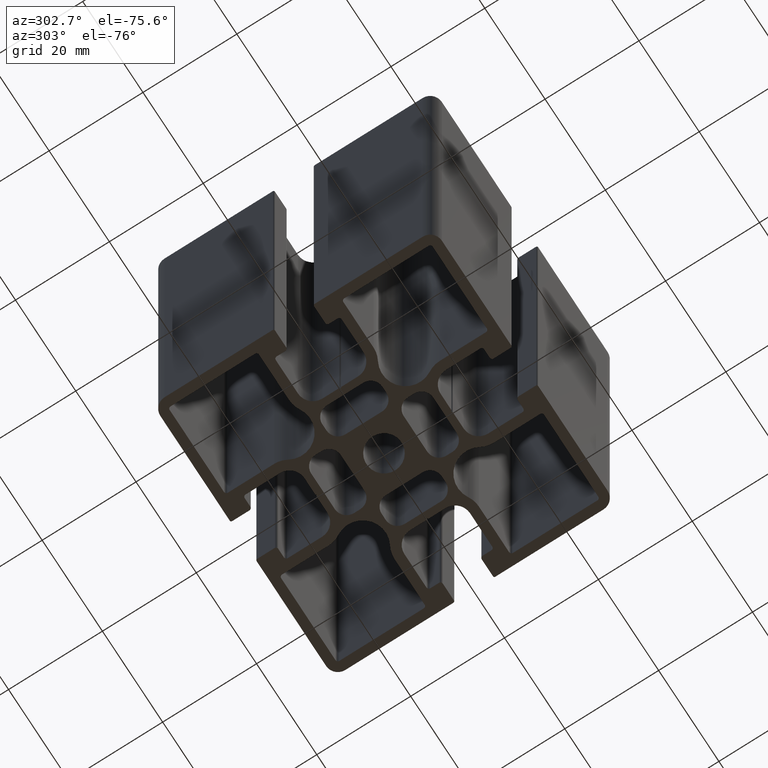
[diagram: clean part render]
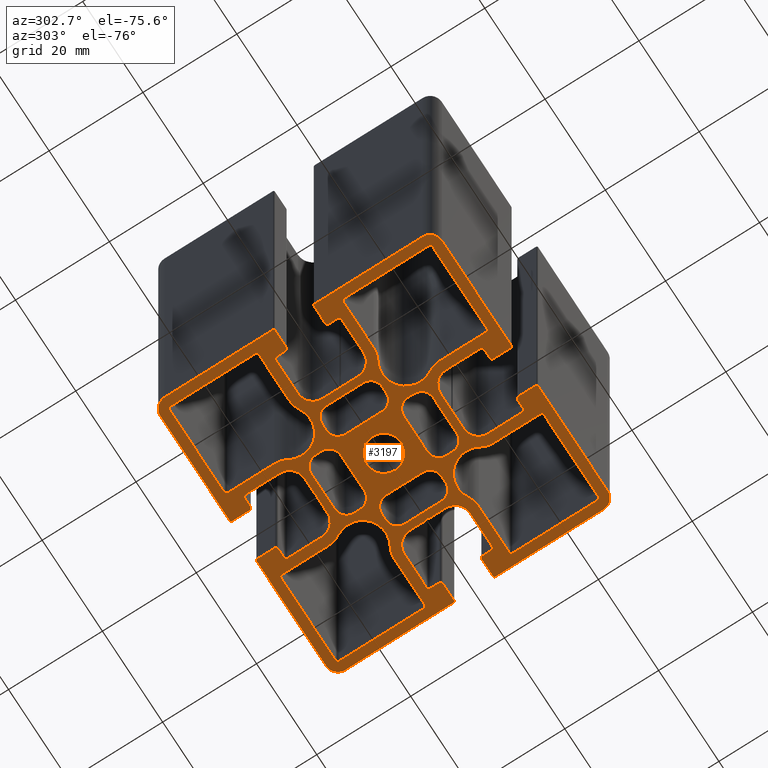
[diagram: same view with one face highlighted and labeled with its STEP entity id]
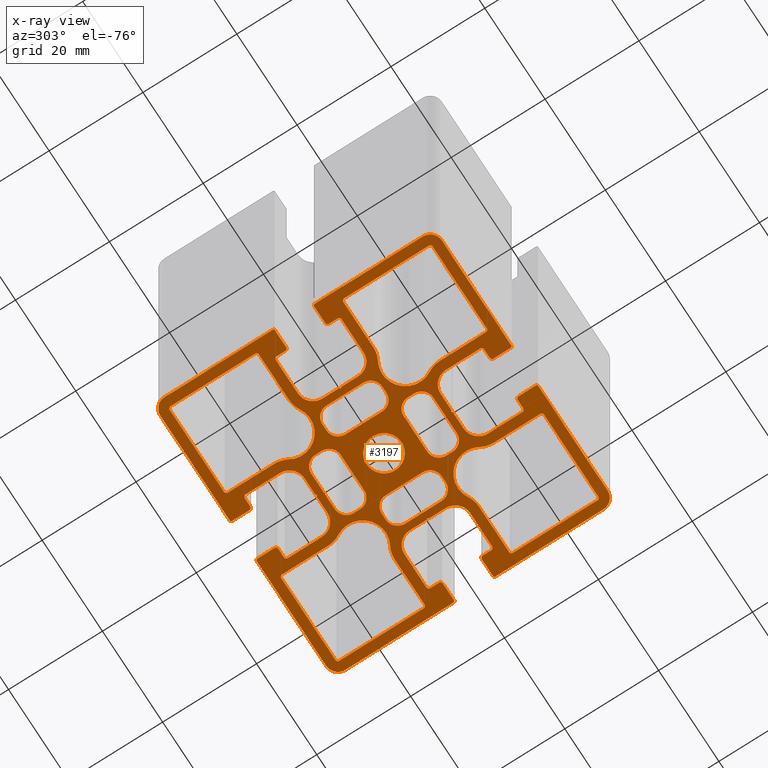
[diagram: x-ray of the same camera — body ghosted, the highlighted face saturated]
A machine part, auxiliary view. The second image highlights one B-rep face of the part: STEP entity #3197.
The next image is the same camera in x-ray: the body ghosted, the highlighted face saturated — about 0% of this face is hidden behind the body in this view.
In plain terms, the highlighted planar face has unit normal (0, 0, 1).
Its self-contained STEP definition (entity closure, byte-faithful):
#16=FACE_BOUND('',#583,.T.);
#17=FACE_BOUND('',#584,.T.);
#18=FACE_BOUND('',#585,.T.);
#19=FACE_BOUND('',#586,.T.);
#20=FACE_BOUND('',#587,.T.);
#21=FACE_BOUND('',#588,.T.);
#22=FACE_BOUND('',#589,.T.);
#23=FACE_BOUND('',#590,.T.);
#24=FACE_BOUND('',#591,.T.);
#34=CIRCLE('',#3203,5.00000000000021);
#36=CIRCLE('',#3206,4.9122486443293);
#38=CIRCLE('',#3209,5.00000000000036);
#40=CIRCLE('',#3213,0.500000000000025);
#42=CIRCLE('',#3217,0.500000000000007);
#44=CIRCLE('',#3221,0.500000000000025);
#46=CIRCLE('',#3224,5.00000000000031);
#48=CIRCLE('',#3228,0.50000000000006);
#50=CIRCLE('',#3232,0.500000000000007);
#52=CIRCLE('',#3236,0.500000000000007);
#54=CIRCLE('',#3240,4.99999999999972);
#56=CIRCLE('',#3243,4.9122486443293);
#58=CIRCLE('',#3247,0.500000000000007);
#60=CIRCLE('',#3251,4.99999999999999);
#62=CIRCLE('',#3254,4.91224864432931);
#64=CIRCLE('',#3257,5.00000000000009);
#66=CIRCLE('',#3261,0.500000000000025);
#68=CIRCLE('',#3265,0.499999999999998);
#70=CIRCLE('',#3268,0.499999999999998);
#72=CIRCLE('',#3272,0.500000000000025);
#74=CIRCLE('',#3276,0.499999999999989);
#76=CIRCLE('',#3280,4.99999999999964);
#78=CIRCLE('',#3283,4.9122486443293);
#80=CIRCLE('',#3286,4.99999999999993);
#82=CIRCLE('',#3290,2.5);
#84=CIRCLE('',#3294,2.5);
#86=CIRCLE('',#3298,2.50000000000002);
#88=CIRCLE('',#3302,2.49999999999998);
#90=CIRCLE('',#3307,2.49999999999998);
#92=CIRCLE('',#3311,2.50000000000002);
#94=CIRCLE('',#3315,2.49999999999998);
#96=CIRCLE('',#3319,2.49999999999996);
#98=CIRCLE('',#3323,2.50000000000001);
#100=CIRCLE('',#3327,2.5);
#102=CIRCLE('',#3331,2.50000000000001);
#104=CIRCLE('',#3335,2.49999999999998);
#106=CIRCLE('',#3338,2.50000000000004);
#108=CIRCLE('',#3342,2.49999999999998);
#110=CIRCLE('',#3346,2.5);
#112=CIRCLE('',#3350,2.49999999999998);
#115=CIRCLE('',#3355,3.735);
#116=CIRCLE('',#3360,3.19999999999998);
#118=CIRCLE('',#3364,0.499999999999989);
#120=CIRCLE('',#3368,0.499999999999989);
#122=CIRCLE('',#3372,0.300000000000011);
#124=CIRCLE('',#3376,2.50000000000001);
#126=CIRCLE('',#3380,0.299999999999994);
#128=CIRCLE('',#3384,0.500000000000016);
#130=CIRCLE('',#3388,0.500000000000025);
#132=CIRCLE('',#3392,3.19999999999999);
#134=CIRCLE('',#3399,3.19999999999998);
#136=CIRCLE('',#3403,0.499999999999989);
#138=CIRCLE('',#3407,0.500000000000007);
#140=CIRCLE('',#3411,0.299999999999976);
#142=CIRCLE('',#3415,2.49999999999996);
#144=CIRCLE('',#3419,0.300000000000038);
#146=CIRCLE('',#3423,0.500000000000078);
#148=CIRCLE('',#3427,0.500000000000052);
#150=CIRCLE('',#3431,3.2);
#152=CIRCLE('',#3438,3.2);
#154=CIRCLE('',#3442,0.500000000000078);
#156=CIRCLE('',#3446,0.50000000000006);
#158=CIRCLE('',#3450,0.300000000000047);
#160=CIRCLE('',#3454,2.49999999999996);
#162=CIRCLE('',#3458,0.299999999999976);
#164=CIRCLE('',#3462,0.500000000000025);
#166=CIRCLE('',#3466,0.500000000000007);
#168=CIRCLE('',#3470,3.2);
#170=CIRCLE('',#3477,3.2);
#172=CIRCLE('',#3481,0.500000000000025);
#174=CIRCLE('',#3485,0.500000000000043);
#176=CIRCLE('',#3489,0.299999999999976);
#178=CIRCLE('',#3493,2.49999999999998);
#180=CIRCLE('',#3497,0.299999999999976);
#182=CIRCLE('',#3501,0.500000000000025);
#184=CIRCLE('',#3505,0.500000000000025);
#186=CIRCLE('',#3509,3.2);
#422=FACE_OUTER_BOUND('',#582,.T.);
#582=EDGE_LOOP('',(#2644,#2645,#2646,#2647,#2648,#2649,#2650,#2651,#2652,
#2653,#2654,#2655,#2656,#2657,#2658,#2659,#2660,#2661,#2662,#2663,#2664,
#2665,#2666,#2667,#2668,#2669,#2670,#2671,#2672,#2673,#2674,#2675,#2676,
#2677,#2678,#2679,#2680,#2681,#2682,#2683,#2684,#2685,#2686,#2687,#2688,
#2689,#2690,#2691,#2692,#2693,#2694,#2695,#2696,#2697,#2698,#2699,#2700,
#2701,#2702,#2703,#2704,#2705,#2706,#2707,#2708,#2709,#2710,#2711,#2712,
#2713,#2714,#2715,#2716,#2717,#2718,#2719,#2720,#2721,#2722,#2723,#2724,
#2725,#2726,#2727));
#583=EDGE_LOOP('',(#2728,#2729,#2730,#2731,#2732,#2733,#2734,#2735,#2736,
#2737));
#584=EDGE_LOOP('',(#2738,#2739,#2740,#2741,#2742,#2743,#2744,#2745,#2746,
#2747));
#585=EDGE_LOOP('',(#2748,#2749,#2750,#2751,#2752,#2753,#2754,#2755,#2756,
#2757));
#586=EDGE_LOOP('',(#2758,#2759,#2760,#2761,#2762,#2763,#2764,#2765,#2766,
#2767));
#587=EDGE_LOOP('',(#2768,#2769,#2770,#2771,#2772,#2773,#2774,#2775));
#588=EDGE_LOOP('',(#2776,#2777,#2778,#2779,#2780,#2781,#2782,#2783));
#589=EDGE_LOOP('',(#2784,#2785,#2786,#2787,#2788,#2789,#2790,#2791));
#590=EDGE_LOOP('',(#2792,#2793,#2794,#2795,#2796,#2797,#2798,#2799));
#591=EDGE_LOOP('',(#2800));
#602=LINE('',#4462,#918);
#609=LINE('',#4488,#925);
#613=LINE('',#4500,#929);
#617=LINE('',#4512,#933);
#622=LINE('',#4530,#938);
#626=LINE('',#4542,#942);
#630=LINE('',#4554,#946);
#634=LINE('',#4566,#950);
#638=LINE('',#4582,#954);
#643=LINE('',#4596,#959);
#649=LINE('',#4620,#965);
#653=LINE('',#4632,#969);
#658=LINE('',#4650,#974);
#662=LINE('',#4662,#978);
#666=LINE('',#4674,#982);
#672=LINE('',#4697,#988);
#676=LINE('',#4710,#992);
#680=LINE('',#4722,#996);
#684=LINE('',#4734,#1000);
#688=LINE('',#4745,#1004);
#690=LINE('',#4750,#1006);
#695=LINE('',#4764,#1011);
#699=LINE('',#4776,#1015);
#703=LINE('',#4788,#1019);
#706=LINE('',#4798,#1022);
#711=LINE('',#4812,#1027);
#715=LINE('',#4824,#1031);
#719=LINE('',#4836,#1035);
#724=LINE('',#4854,#1040);
#728=LINE('',#4866,#1044);
#732=LINE('',#4878,#1048);
#736=LINE('',#4889,#1052);
#738=LINE('',#4899,#1054);
#742=LINE('',#4907,#1058);
#745=LINE('',#4913,#1061);
#749=LINE('',#4925,#1065);
#753=LINE('',#4937,#1069);
#757=LINE('',#4949,#1073);
#761=LINE('',#4961,#1077);
#765=LINE('',#4973,#1081);
#769=LINE('',#4985,#1085);
#773=LINE('',#4997,#1089);
#777=LINE('',#5009,#1093);
#781=LINE('',#5021,#1097);
#784=LINE('',#5027,#1100);
#787=LINE('',#5033,#1103);
#790=LINE('',#5039,#1106);
#794=LINE('',#5051,#1110);
#798=LINE('',#5063,#1114);
#802=LINE('',#5075,#1118);
#806=LINE('',#5087,#1122);
#810=LINE('',#5099,#1126);
#814=LINE('',#5111,#1130);
#818=LINE('',#5123,#1134);
#822=LINE('',#5135,#1138);
#826=LINE('',#5147,#1142);
#829=LINE('',#5153,#1145);
#832=LINE('',#5159,#1148);
#835=LINE('',#5165,#1151);
#839=LINE('',#5177,#1155);
#843=LINE('',#5189,#1159);
#847=LINE('',#5201,#1163);
#851=LINE('',#5213,#1167);
#855=LINE('',#5225,#1171);
#859=LINE('',#5237,#1175);
#863=LINE('',#5249,#1179);
#867=LINE('',#5261,#1183);
#871=LINE('',#5273,#1187);
#874=LINE('',#5279,#1190);
#877=LINE('',#5285,#1193);
#880=LINE('',#5291,#1196);
#884=LINE('',#5303,#1200);
#888=LINE('',#5315,#1204);
#892=LINE('',#5327,#1208);
#896=LINE('',#5339,#1212);
#900=LINE('',#5351,#1216);
#904=LINE('',#5363,#1220);
#908=LINE('',#5375,#1224);
#912=LINE('',#5387,#1228);
#916=LINE('',#5398,#1232);
#918=VECTOR('',#3518,9.86005191961489);
#925=VECTOR('',#3545,10.0097508725516);
#929=VECTOR('',#3557,17.9999999999998);
#933=VECTOR('',#3569,17.9999999999999);
#938=VECTOR('',#3588,9.86005191961478);
#942=VECTOR('',#3600,17.9999999999999);
#946=VECTOR('',#3612,18.0000000000038);
#950=VECTOR('',#3624,10.0097508725516);
#954=VECTOR('',#3642,17.9999999999999);
#959=VECTOR('',#3655,9.86005191961478);
#965=VECTOR('',#3681,10.0097508725516);
#969=VECTOR('',#3693,18.);
#974=VECTOR('',#3712,17.9999999999999);
#978=VECTOR('',#3724,17.9999999999999);
#982=VECTOR('',#3736,10.0097508725516);
#988=VECTOR('',#3762,9.86005191961491);
#992=VECTOR('',#3774,7.79999999999993);
#996=VECTOR('',#3786,1.29999999999995);
#1000=VECTOR('',#3798,7.8);
#1004=VECTOR('',#3810,1.29999999999981);
#1006=VECTOR('',#3814,1.30000000000003);
#1011=VECTOR('',#3827,7.79999999999998);
#1015=VECTOR('',#3839,1.29999999999985);
#1019=VECTOR('',#3851,7.80000000000003);
#1022=VECTOR('',#3862,7.79999999999997);
#1027=VECTOR('',#3875,1.30000000000001);
#1031=VECTOR('',#3887,7.79999999999993);
#1035=VECTOR('',#3899,1.29999999999979);
#1040=VECTOR('',#3918,7.80000000000001);
#1044=VECTOR('',#3930,1.29999999999999);
#1048=VECTOR('',#3942,7.79999999999998);
#1052=VECTOR('',#3954,1.29999999999981);
#1054=VECTOR('',#3964,0.291605758509997);
#1058=VECTOR('',#3970,0.291605758511014);
#1061=VECTOR('',#3975,3.59380359072532);
#1065=VECTOR('',#3987,7.30000000000006);
#1069=VECTOR('',#3999,1.85000000000004);
#1073=VECTOR('',#4011,3.70000000000005);
#1077=VECTOR('',#4023,23.0500000000002);
#1081=VECTOR('',#4035,23.0500000000003);
#1085=VECTOR('',#4047,3.69999999999997);
#1089=VECTOR('',#4059,1.85000000000002);
#1093=VECTOR('',#4071,7.30000000000001);
#1097=VECTOR('',#4083,3.59380359072386);
#1100=VECTOR('',#4088,0.291605758510009);
#1103=VECTOR('',#4093,0.291605758511045);
#1106=VECTOR('',#4098,3.59380359072531);
#1110=VECTOR('',#4110,7.30000000000005);
#1114=VECTOR('',#4122,1.85000000000016);
#1118=VECTOR('',#4134,3.7);
#1122=VECTOR('',#4146,23.05);
#1126=VECTOR('',#4158,23.0499999999999);
#1130=VECTOR('',#4170,3.69999999999991);
#1134=VECTOR('',#4182,1.85000000000002);
#1138=VECTOR('',#4194,7.3);
#1142=VECTOR('',#4206,3.59380359072388);
#1145=VECTOR('',#4211,0.291605758511039);
#1148=VECTOR('',#4216,0.291605758510022);
#1151=VECTOR('',#4221,3.59380359072532);
#1155=VECTOR('',#4233,7.3);
#1159=VECTOR('',#4245,1.85000000000004);
#1163=VECTOR('',#4257,3.70000000000005);
#1167=VECTOR('',#4269,23.0499999999995);
#1171=VECTOR('',#4281,23.0499999999956);
#1175=VECTOR('',#4293,3.69999999999996);
#1179=VECTOR('',#4305,1.85000000000066);
#1183=VECTOR('',#4317,7.3);
#1187=VECTOR('',#4329,3.59380359072417);
#1190=VECTOR('',#4334,0.291605758514217);
#1193=VECTOR('',#4339,0.291605758511052);
#1196=VECTOR('',#4344,3.5938035907253);
#1200=VECTOR('',#4356,7.30000000000004);
#1204=VECTOR('',#4368,1.84999999999999);
#1208=VECTOR('',#4380,3.69999999999992);
#1212=VECTOR('',#4392,23.0499999999999);
#1216=VECTOR('',#4404,23.05);
#1220=VECTOR('',#4416,3.6999999999999);
#1224=VECTOR('',#4428,1.85000000000002);
#1228=VECTOR('',#4440,7.3);
#1232=VECTOR('',#4452,3.59380359072388);
#1234=VERTEX_POINT('',#4460);
#1235=VERTEX_POINT('',#4461);
#1238=VERTEX_POINT('',#4469);
#1240=VERTEX_POINT('',#4475);
#1242=VERTEX_POINT('',#4481);
#1244=VERTEX_POINT('',#4487);
#1246=VERTEX_POINT('',#4493);
#1248=VERTEX_POINT('',#4499);
#1250=VERTEX_POINT('',#4505);
#1252=VERTEX_POINT('',#4511);
#1254=VERTEX_POINT('',#4520);
#1255=VERTEX_POINT('',#4521);
#1258=VERTEX_POINT('',#4529);
#1260=VERTEX_POINT('',#4535);
#1262=VERTEX_POINT('',#4541);
#1264=VERTEX_POINT('',#4547);
#1266=VERTEX_POINT('',#4553);
#1268=VERTEX_POINT('',#4559);
#1270=VERTEX_POINT('',#4565);
#1272=VERTEX_POINT('',#4571);
#1274=VERTEX_POINT('',#4580);
#1275=VERTEX_POINT('',#4581);
#1278=VERTEX_POINT('',#4589);
#1280=VERTEX_POINT('',#4595);
#1282=VERTEX_POINT('',#4601);
#1284=VERTEX_POINT('',#4607);
#1286=VERTEX_POINT('',#4613);
#1288=VERTEX_POINT('',#4619);
#1290=VERTEX_POINT('',#4625);
#1292=VERTEX_POINT('',#4631);
#1294=VERTEX_POINT('',#4640);
#1295=VERTEX_POINT('',#4641);
#1298=VERTEX_POINT('',#4649);
#1300=VERTEX_POINT('',#4655);
#1302=VERTEX_POINT('',#4661);
#1304=VERTEX_POINT('',#4667);
#1306=VERTEX_POINT('',#4673);
#1308=VERTEX_POINT('',#4679);
#1310=VERTEX_POINT('',#4685);
#1312=VERTEX_POINT('',#4691);
#1314=VERTEX_POINT('',#4700);
#1315=VERTEX_POINT('',#4701);
#1318=VERTEX_POINT('',#4709);
#1320=VERTEX_POINT('',#4715);
#1322=VERTEX_POINT('',#4721);
#1324=VERTEX_POINT('',#4727);
#1326=VERTEX_POINT('',#4733);
#1328=VERTEX_POINT('',#4739);
#1330=VERTEX_POINT('',#4748);
#1331=VERTEX_POINT('',#4749);
#1334=VERTEX_POINT('',#4757);
#1336=VERTEX_POINT('',#4763);
#1338=VERTEX_POINT('',#4769);
#1340=VERTEX_POINT('',#4775);
#1342=VERTEX_POINT('',#4781);
#1344=VERTEX_POINT('',#4787);
#1346=VERTEX_POINT('',#4796);
#1347=VERTEX_POINT('',#4797);
#1350=VERTEX_POINT('',#4805);
#1352=VERTEX_POINT('',#4811);
#1354=VERTEX_POINT('',#4817);
#1356=VERTEX_POINT('',#4823);
#1358=VERTEX_POINT('',#4829);
#1360=VERTEX_POINT('',#4835);
#1362=VERTEX_POINT('',#4844);
#1363=VERTEX_POINT('',#4845);
#1366=VERTEX_POINT('',#4853);
#1368=VERTEX_POINT('',#4859);
#1370=VERTEX_POINT('',#4865);
#1372=VERTEX_POINT('',#4871);
#1374=VERTEX_POINT('',#4877);
#1376=VERTEX_POINT('',#4883);
#1379=VERTEX_POINT('',#4894);
#1380=VERTEX_POINT('',#4897);
#1381=VERTEX_POINT('',#4898);
#1384=VERTEX_POINT('',#4906);
#1386=VERTEX_POINT('',#4912);
#1388=VERTEX_POINT('',#4918);
#1390=VERTEX_POINT('',#4924);
#1392=VERTEX_POINT('',#4930);
#1394=VERTEX_POINT('',#4936);
#1396=VERTEX_POINT('',#4942);
#1398=VERTEX_POINT('',#4948);
#1400=VERTEX_POINT('',#4954);
#1402=VERTEX_POINT('',#4960);
#1404=VERTEX_POINT('',#4966);
#1406=VERTEX_POINT('',#4972);
#1408=VERTEX_POINT('',#4978);
#1410=VERTEX_POINT('',#4984);
#1412=VERTEX_POINT('',#4990);
#1414=VERTEX_POINT('',#4996);
#1416=VERTEX_POINT('',#5002);
#1418=VERTEX_POINT('',#5008);
#1420=VERTEX_POINT('',#5014);
#1422=VERTEX_POINT('',#5020);
#1424=VERTEX_POINT('',#5026);
#1426=VERTEX_POINT('',#5032);
#1428=VERTEX_POINT('',#5038);
#1430=VERTEX_POINT('',#5044);
#1432=VERTEX_POINT('',#5050);
#1434=VERTEX_POINT('',#5056);
#1436=VERTEX_POINT('',#5062);
#1438=VERTEX_POINT('',#5068);
#1440=VERTEX_POINT('',#5074);
#1442=VERTEX_POINT('',#5080);
#1444=VERTEX_POINT('',#5086);
#1446=VERTEX_POINT('',#5092);
#1448=VERTEX_POINT('',#5098);
#1450=VERTEX_POINT('',#5104);
#1452=VERTEX_POINT('',#5110);
#1454=VERTEX_POINT('',#5116);
#1456=VERTEX_POINT('',#5122);
#1458=VERTEX_POINT('',#5128);
#1460=VERTEX_POINT('',#5134);
#1462=VERTEX_POINT('',#5140);
#1464=VERTEX_POINT('',#5146);
#1466=VERTEX_POINT('',#5152);
#1468=VERTEX_POINT('',#5158);
#1470=VERTEX_POINT('',#5164);
#1472=VERTEX_POINT('',#5170);
#1474=VERTEX_POINT('',#5176);
#1476=VERTEX_POINT('',#5182);
#1478=VERTEX_POINT('',#5188);
#1480=VERTEX_POINT('',#5194);
#1482=VERTEX_POINT('',#5200);
#1484=VERTEX_POINT('',#5206);
#1486=VERTEX_POINT('',#5212);
#1488=VERTEX_POINT('',#5218);
#1490=VERTEX_POINT('',#5224);
#1492=VERTEX_POINT('',#5230);
#1494=VERTEX_POINT('',#5236);
#1496=VERTEX_POINT('',#5242);
#1498=VERTEX_POINT('',#5248);
#1500=VERTEX_POINT('',#5254);
#1502=VERTEX_POINT('',#5260);
#1504=VERTEX_POINT('',#5266);
#1506=VERTEX_POINT('',#5272);
#1508=VERTEX_POINT('',#5278);
#1510=VERTEX_POINT('',#5284);
#1512=VERTEX_POINT('',#5290);
#1514=VERTEX_POINT('',#5296);
#1516=VERTEX_POINT('',#5302);
#1518=VERTEX_POINT('',#5308);
#1520=VERTEX_POINT('',#5314);
#1522=VERTEX_POINT('',#5320);
#1524=VERTEX_POINT('',#5326);
#1526=VERTEX_POINT('',#5332);
#1528=VERTEX_POINT('',#5338);
#1530=VERTEX_POINT('',#5344);
#1532=VERTEX_POINT('',#5350);
#1534=VERTEX_POINT('',#5356);
#1536=VERTEX_POINT('',#5362);
#1538=VERTEX_POINT('',#5368);
#1540=VERTEX_POINT('',#5374);
#1542=VERTEX_POINT('',#5380);
#1544=VERTEX_POINT('',#5386);
#1546=VERTEX_POINT('',#5392);
#1548=EDGE_CURVE('',#1234,#1235,#602,.T.);
#1552=EDGE_CURVE('',#1238,#1234,#34,.T.);
#1555=EDGE_CURVE('',#1240,#1238,#36,.T.);
#1558=EDGE_CURVE('',#1242,#1240,#38,.T.);
#1561=EDGE_CURVE('',#1244,#1242,#609,.T.);
#1564=EDGE_CURVE('',#1246,#1244,#40,.T.);
#1567=EDGE_CURVE('',#1248,#1246,#613,.T.);
#1570=EDGE_CURVE('',#1250,#1248,#42,.T.);
#1573=EDGE_CURVE('',#1252,#1250,#617,.T.);
#1576=EDGE_CURVE('',#1235,#1252,#44,.T.);
#1578=EDGE_CURVE('',#1254,#1255,#46,.T.);
#1582=EDGE_CURVE('',#1258,#1254,#622,.T.);
#1585=EDGE_CURVE('',#1260,#1258,#48,.T.);
#1588=EDGE_CURVE('',#1262,#1260,#626,.T.);
#1591=EDGE_CURVE('',#1264,#1262,#50,.T.);
#1594=EDGE_CURVE('',#1266,#1264,#630,.T.);
#1597=EDGE_CURVE('',#1268,#1266,#52,.T.);
#1600=EDGE_CURVE('',#1270,#1268,#634,.T.);
#1603=EDGE_CURVE('',#1272,#1270,#54,.T.);
#1606=EDGE_CURVE('',#1255,#1272,#56,.T.);
#1608=EDGE_CURVE('',#1274,#1275,#638,.T.);
#1612=EDGE_CURVE('',#1278,#1274,#58,.T.);
#1615=EDGE_CURVE('',#1280,#1278,#643,.T.);
#1618=EDGE_CURVE('',#1282,#1280,#60,.T.);
#1621=EDGE_CURVE('',#1284,#1282,#62,.T.);
#1624=EDGE_CURVE('',#1286,#1284,#64,.T.);
#1627=EDGE_CURVE('',#1288,#1286,#649,.T.);
#1630=EDGE_CURVE('',#1290,#1288,#66,.T.);
#1633=EDGE_CURVE('',#1292,#1290,#653,.T.);
#1636=EDGE_CURVE('',#1275,#1292,#68,.T.);
#1638=EDGE_CURVE('',#1294,#1295,#70,.T.);
#1642=EDGE_CURVE('',#1298,#1294,#658,.T.);
#1645=EDGE_CURVE('',#1300,#1298,#72,.T.);
#1648=EDGE_CURVE('',#1302,#1300,#662,.T.);
#1651=EDGE_CURVE('',#1304,#1302,#74,.T.);
#1654=EDGE_CURVE('',#1306,#1304,#666,.T.);
#1657=EDGE_CURVE('',#1308,#1306,#76,.T.);
#1660=EDGE_CURVE('',#1310,#1308,#78,.T.);
#1663=EDGE_CURVE('',#1312,#1310,#80,.T.);
#1666=EDGE_CURVE('',#1295,#1312,#672,.T.);
#1668=EDGE_CURVE('',#1314,#1315,#82,.T.);
#1672=EDGE_CURVE('',#1318,#1314,#676,.T.);
#1675=EDGE_CURVE('',#1320,#1318,#84,.T.);
#1678=EDGE_CURVE('',#1322,#1320,#680,.T.);
#1681=EDGE_CURVE('',#1324,#1322,#86,.T.);
#1684=EDGE_CURVE('',#1326,#1324,#684,.T.);
#1687=EDGE_CURVE('',#1328,#1326,#88,.T.);
#1690=EDGE_CURVE('',#1315,#1328,#688,.T.);
#1692=EDGE_CURVE('',#1330,#1331,#690,.T.);
#1696=EDGE_CURVE('',#1334,#1330,#90,.T.);
#1699=EDGE_CURVE('',#1336,#1334,#695,.T.);
#1702=EDGE_CURVE('',#1338,#1336,#92,.T.);
#1705=EDGE_CURVE('',#1340,#1338,#699,.T.);
#1708=EDGE_CURVE('',#1342,#1340,#94,.T.);
#1711=EDGE_CURVE('',#1344,#1342,#703,.T.);
#1714=EDGE_CURVE('',#1331,#1344,#96,.T.);
#1716=EDGE_CURVE('',#1346,#1347,#706,.T.);
#1720=EDGE_CURVE('',#1350,#1346,#98,.T.);
#1723=EDGE_CURVE('',#1352,#1350,#711,.T.);
#1726=EDGE_CURVE('',#1354,#1352,#100,.T.);
#1729=EDGE_CURVE('',#1356,#1354,#715,.T.);
#1732=EDGE_CURVE('',#1358,#1356,#102,.T.);
#1735=EDGE_CURVE('',#1360,#1358,#719,.T.);
#1738=EDGE_CURVE('',#1347,#1360,#104,.T.);
#1740=EDGE_CURVE('',#1362,#1363,#106,.T.);
#1744=EDGE_CURVE('',#1366,#1362,#724,.T.);
#1747=EDGE_CURVE('',#1368,#1366,#108,.T.);
#1750=EDGE_CURVE('',#1370,#1368,#728,.T.);
#1753=EDGE_CURVE('',#1372,#1370,#110,.T.);
#1756=EDGE_CURVE('',#1374,#1372,#732,.T.);
#1759=EDGE_CURVE('',#1376,#1374,#112,.T.);
#1762=EDGE_CURVE('',#1363,#1376,#736,.T.);
#1765=EDGE_CURVE('',#1379,#1379,#115,.T.);
#1766=EDGE_CURVE('',#1380,#1381,#738,.T.);
#1770=EDGE_CURVE('',#1381,#1384,#742,.T.);
#1773=EDGE_CURVE('',#1384,#1386,#745,.T.);
#1776=EDGE_CURVE('',#1386,#1388,#116,.T.);
#1779=EDGE_CURVE('',#1388,#1390,#749,.T.);
#1782=EDGE_CURVE('',#1390,#1392,#118,.T.);
#1785=EDGE_CURVE('',#1392,#1394,#753,.T.);
#1788=EDGE_CURVE('',#1394,#1396,#120,.T.);
#1791=EDGE_CURVE('',#1396,#1398,#757,.T.);
#1794=EDGE_CURVE('',#1398,#1400,#122,.T.);
#1797=EDGE_CURVE('',#1400,#1402,#761,.T.);
#1800=EDGE_CURVE('',#1402,#1404,#124,.T.);
#1803=EDGE_CURVE('',#1404,#1406,#765,.T.);
#1806=EDGE_CURVE('',#1406,#1408,#126,.T.);
#1809=EDGE_CURVE('',#1408,#1410,#769,.T.);
#1812=EDGE_CURVE('',#1410,#1412,#128,.T.);
#1815=EDGE_CURVE('',#1412,#1414,#773,.T.);
#1818=EDGE_CURVE('',#1414,#1416,#130,.T.);
#1821=EDGE_CURVE('',#1416,#1418,#777,.T.);
#1824=EDGE_CURVE('',#1418,#1420,#132,.T.);
#1827=EDGE_CURVE('',#1420,#1422,#781,.T.);
#1830=EDGE_CURVE('',#1422,#1424,#784,.T.);
#1833=EDGE_CURVE('',#1424,#1426,#787,.T.);
#1836=EDGE_CURVE('',#1426,#1428,#790,.T.);
#1839=EDGE_CURVE('',#1428,#1430,#134,.T.);
#1842=EDGE_CURVE('',#1430,#1432,#794,.T.);
#1845=EDGE_CURVE('',#1432,#1434,#136,.T.);
#1848=EDGE_CURVE('',#1434,#1436,#798,.T.);
#1851=EDGE_CURVE('',#1436,#1438,#138,.T.);
#1854=EDGE_CURVE('',#1438,#1440,#802,.T.);
#1857=EDGE_CURVE('',#1440,#1442,#140,.T.);
#1860=EDGE_CURVE('',#1442,#1444,#806,.T.);
#1863=EDGE_CURVE('',#1444,#1446,#142,.T.);
#1866=EDGE_CURVE('',#1446,#1448,#810,.T.);
#1869=EDGE_CURVE('',#1448,#1450,#144,.T.);
#1872=EDGE_CURVE('',#1450,#1452,#814,.T.);
#1875=EDGE_CURVE('',#1452,#1454,#146,.T.);
#1878=EDGE_CURVE('',#1454,#1456,#818,.T.);
#1881=EDGE_CURVE('',#1456,#1458,#148,.T.);
#1884=EDGE_CURVE('',#1458,#1460,#822,.T.);
#1887=EDGE_CURVE('',#1460,#1462,#150,.T.);
#1890=EDGE_CURVE('',#1462,#1464,#826,.T.);
#1893=EDGE_CURVE('',#1464,#1466,#829,.T.);
#1896=EDGE_CURVE('',#1466,#1468,#832,.T.);
#1899=EDGE_CURVE('',#1468,#1470,#835,.T.);
#1902=EDGE_CURVE('',#1470,#1472,#152,.T.);
#1905=EDGE_CURVE('',#1472,#1474,#839,.T.);
#1908=EDGE_CURVE('',#1474,#1476,#154,.T.);
#1911=EDGE_CURVE('',#1476,#1478,#843,.T.);
#1914=EDGE_CURVE('',#1478,#1480,#156,.T.);
#1917=EDGE_CURVE('',#1480,#1482,#847,.T.);
#1920=EDGE_CURVE('',#1482,#1484,#158,.T.);
#1923=EDGE_CURVE('',#1484,#1486,#851,.T.);
#1926=EDGE_CURVE('',#1486,#1488,#160,.T.);
#1929=EDGE_CURVE('',#1488,#1490,#855,.T.);
#1932=EDGE_CURVE('',#1490,#1492,#162,.T.);
#1935=EDGE_CURVE('',#1492,#1494,#859,.T.);
#1938=EDGE_CURVE('',#1494,#1496,#164,.T.);
#1941=EDGE_CURVE('',#1496,#1498,#863,.T.);
#1944=EDGE_CURVE('',#1498,#1500,#166,.T.);
#1947=EDGE_CURVE('',#1500,#1502,#867,.T.);
#1950=EDGE_CURVE('',#1502,#1504,#168,.T.);
#1953=EDGE_CURVE('',#1504,#1506,#871,.T.);
#1956=EDGE_CURVE('',#1506,#1508,#874,.T.);
#1959=EDGE_CURVE('',#1508,#1510,#877,.T.);
#1962=EDGE_CURVE('',#1510,#1512,#880,.T.);
#1965=EDGE_CURVE('',#1512,#1514,#170,.T.);
#1968=EDGE_CURVE('',#1514,#1516,#884,.T.);
#1971=EDGE_CURVE('',#1516,#1518,#172,.T.);
#1974=EDGE_CURVE('',#1518,#1520,#888,.T.);
#1977=EDGE_CURVE('',#1520,#1522,#174,.T.);
#1980=EDGE_CURVE('',#1522,#1524,#892,.T.);
#1983=EDGE_CURVE('',#1524,#1526,#176,.T.);
#1986=EDGE_CURVE('',#1526,#1528,#896,.T.);
#1989=EDGE_CURVE('',#1528,#1530,#178,.T.);
#1992=EDGE_CURVE('',#1530,#1532,#900,.T.);
#1995=EDGE_CURVE('',#1532,#1534,#180,.T.);
#1998=EDGE_CURVE('',#1534,#1536,#904,.T.);
#2001=EDGE_CURVE('',#1536,#1538,#182,.T.);
#2004=EDGE_CURVE('',#1538,#1540,#908,.T.);
#2007=EDGE_CURVE('',#1540,#1542,#184,.T.);
#2010=EDGE_CURVE('',#1542,#1544,#912,.T.);
#2013=EDGE_CURVE('',#1544,#1546,#186,.T.);
#2016=EDGE_CURVE('',#1546,#1380,#916,.T.);
#2644=ORIENTED_EDGE('',*,*,#2016,.T.);
#2645=ORIENTED_EDGE('',*,*,#1766,.T.);
#2646=ORIENTED_EDGE('',*,*,#1770,.T.);
#2647=ORIENTED_EDGE('',*,*,#1773,.T.);
#2648=ORIENTED_EDGE('',*,*,#1776,.T.);
#2649=ORIENTED_EDGE('',*,*,#1779,.T.);
#2650=ORIENTED_EDGE('',*,*,#1782,.T.);
#2651=ORIENTED_EDGE('',*,*,#1785,.T.);
#2652=ORIENTED_EDGE('',*,*,#1788,.T.);
#2653=ORIENTED_EDGE('',*,*,#1791,.T.);
#2654=ORIENTED_EDGE('',*,*,#1794,.T.);
#2655=ORIENTED_EDGE('',*,*,#1797,.T.);
#2656=ORIENTED_EDGE('',*,*,#1800,.T.);
#2657=ORIENTED_EDGE('',*,*,#1803,.T.);
#2658=ORIENTED_EDGE('',*,*,#1806,.T.);
#2659=ORIENTED_EDGE('',*,*,#1809,.T.);
#2660=ORIENTED_EDGE('',*,*,#1812,.T.);
#2661=ORIENTED_EDGE('',*,*,#1815,.T.);
#2662=ORIENTED_EDGE('',*,*,#1818,.T.);
#2663=ORIENTED_EDGE('',*,*,#1821,.T.);
#2664=ORIENTED_EDGE('',*,*,#1824,.T.);
#2665=ORIENTED_EDGE('',*,*,#1827,.T.);
#2666=ORIENTED_EDGE('',*,*,#1830,.T.);
#2667=ORIENTED_EDGE('',*,*,#1833,.T.);
#2668=ORIENTED_EDGE('',*,*,#1836,.T.);
#2669=ORIENTED_EDGE('',*,*,#1839,.T.);
#2670=ORIENTED_EDGE('',*,*,#1842,.T.);
#2671=ORIENTED_EDGE('',*,*,#1845,.T.);
#2672=ORIENTED_EDGE('',*,*,#1848,.T.);
#2673=ORIENTED_EDGE('',*,*,#1851,.T.);
#2674=ORIENTED_EDGE('',*,*,#1854,.T.);
#2675=ORIENTED_EDGE('',*,*,#1857,.T.);
#2676=ORIENTED_EDGE('',*,*,#1860,.T.);
#2677=ORIENTED_EDGE('',*,*,#1863,.T.);
#2678=ORIENTED_EDGE('',*,*,#1866,.T.);
#2679=ORIENTED_EDGE('',*,*,#1869,.T.);
#2680=ORIENTED_EDGE('',*,*,#1872,.T.);
#2681=ORIENTED_EDGE('',*,*,#1875,.T.);
#2682=ORIENTED_EDGE('',*,*,#1878,.T.);
#2683=ORIENTED_EDGE('',*,*,#1881,.T.);
#2684=ORIENTED_EDGE('',*,*,#1884,.T.);
#2685=ORIENTED_EDGE('',*,*,#1887,.T.);
#2686=ORIENTED_EDGE('',*,*,#1890,.T.);
#2687=ORIENTED_EDGE('',*,*,#1893,.T.);
#2688=ORIENTED_EDGE('',*,*,#1896,.T.);
#2689=ORIENTED_EDGE('',*,*,#1899,.T.);
#2690=ORIENTED_EDGE('',*,*,#1902,.T.);
#2691=ORIENTED_EDGE('',*,*,#1905,.T.);
#2692=ORIENTED_EDGE('',*,*,#1908,.T.);
#2693=ORIENTED_EDGE('',*,*,#1911,.T.);
#2694=ORIENTED_EDGE('',*,*,#1914,.T.);
#2695=ORIENTED_EDGE('',*,*,#1917,.T.);
#2696=ORIENTED_EDGE('',*,*,#1920,.T.);
#2697=ORIENTED_EDGE('',*,*,#1923,.T.);
#2698=ORIENTED_EDGE('',*,*,#1926,.T.);
#2699=ORIENTED_EDGE('',*,*,#1929,.T.);
#2700=ORIENTED_EDGE('',*,*,#1932,.T.);
#2701=ORIENTED_EDGE('',*,*,#1935,.T.);
#2702=ORIENTED_EDGE('',*,*,#1938,.T.);
#2703=ORIENTED_EDGE('',*,*,#1941,.T.);
#2704=ORIENTED_EDGE('',*,*,#1944,.T.);
#2705=ORIENTED_EDGE('',*,*,#1947,.T.);
#2706=ORIENTED_EDGE('',*,*,#1950,.T.);
#2707=ORIENTED_EDGE('',*,*,#1953,.T.);
#2708=ORIENTED_EDGE('',*,*,#1956,.T.);
#2709=ORIENTED_EDGE('',*,*,#1959,.T.);
#2710=ORIENTED_EDGE('',*,*,#1962,.T.);
#2711=ORIENTED_EDGE('',*,*,#1965,.T.);
#2712=ORIENTED_EDGE('',*,*,#1968,.T.);
#2713=ORIENTED_EDGE('',*,*,#1971,.T.);
#2714=ORIENTED_EDGE('',*,*,#1974,.T.);
#2715=ORIENTED_EDGE('',*,*,#1977,.T.);
#2716=ORIENTED_EDGE('',*,*,#1980,.T.);
#2717=ORIENTED_EDGE('',*,*,#1983,.T.);
#2718=ORIENTED_EDGE('',*,*,#1986,.T.);
#2719=ORIENTED_EDGE('',*,*,#1989,.T.);
#2720=ORIENTED_EDGE('',*,*,#1992,.T.);
#2721=ORIENTED_EDGE('',*,*,#1995,.T.);
#2722=ORIENTED_EDGE('',*,*,#1998,.T.);
#2723=ORIENTED_EDGE('',*,*,#2001,.T.);
#2724=ORIENTED_EDGE('',*,*,#2004,.T.);
#2725=ORIENTED_EDGE('',*,*,#2007,.T.);
#2726=ORIENTED_EDGE('',*,*,#2010,.T.);
#2727=ORIENTED_EDGE('',*,*,#2013,.T.);
#2728=ORIENTED_EDGE('',*,*,#1548,.T.);
#2729=ORIENTED_EDGE('',*,*,#1576,.T.);
#2730=ORIENTED_EDGE('',*,*,#1573,.T.);
#2731=ORIENTED_EDGE('',*,*,#1570,.T.);
#2732=ORIENTED_EDGE('',*,*,#1567,.T.);
#2733=ORIENTED_EDGE('',*,*,#1564,.T.);
#2734=ORIENTED_EDGE('',*,*,#1561,.T.);
#2735=ORIENTED_EDGE('',*,*,#1558,.T.);
#2736=ORIENTED_EDGE('',*,*,#1555,.T.);
#2737=ORIENTED_EDGE('',*,*,#1552,.T.);
#2738=ORIENTED_EDGE('',*,*,#1578,.T.);
#2739=ORIENTED_EDGE('',*,*,#1606,.T.);
#2740=ORIENTED_EDGE('',*,*,#1603,.T.);
#2741=ORIENTED_EDGE('',*,*,#1600,.T.);
#2742=ORIENTED_EDGE('',*,*,#1597,.T.);
#2743=ORIENTED_EDGE('',*,*,#1594,.T.);
#2744=ORIENTED_EDGE('',*,*,#1591,.T.);
#2745=ORIENTED_EDGE('',*,*,#1588,.T.);
#2746=ORIENTED_EDGE('',*,*,#1585,.T.);
#2747=ORIENTED_EDGE('',*,*,#1582,.T.);
#2748=ORIENTED_EDGE('',*,*,#1608,.T.);
#2749=ORIENTED_EDGE('',*,*,#1636,.T.);
#2750=ORIENTED_EDGE('',*,*,#1633,.T.);
#2751=ORIENTED_EDGE('',*,*,#1630,.T.);
#2752=ORIENTED_EDGE('',*,*,#1627,.T.);
#2753=ORIENTED_EDGE('',*,*,#1624,.T.);
#2754=ORIENTED_EDGE('',*,*,#1621,.T.);
#2755=ORIENTED_EDGE('',*,*,#1618,.T.);
#2756=ORIENTED_EDGE('',*,*,#1615,.T.);
#2757=ORIENTED_EDGE('',*,*,#1612,.T.);
#2758=ORIENTED_EDGE('',*,*,#1638,.T.);
#2759=ORIENTED_EDGE('',*,*,#1666,.T.);
#2760=ORIENTED_EDGE('',*,*,#1663,.T.);
#2761=ORIENTED_EDGE('',*,*,#1660,.T.);
#2762=ORIENTED_EDGE('',*,*,#1657,.T.);
#2763=ORIENTED_EDGE('',*,*,#1654,.T.);
#2764=ORIENTED_EDGE('',*,*,#1651,.T.);
#2765=ORIENTED_EDGE('',*,*,#1648,.T.);
#2766=ORIENTED_EDGE('',*,*,#1645,.T.);
#2767=ORIENTED_EDGE('',*,*,#1642,.T.);
#2768=ORIENTED_EDGE('',*,*,#1668,.T.);
#2769=ORIENTED_EDGE('',*,*,#1690,.T.);
#2770=ORIENTED_EDGE('',*,*,#1687,.T.);
#2771=ORIENTED_EDGE('',*,*,#1684,.T.);
#2772=ORIENTED_EDGE('',*,*,#1681,.T.);
#2773=ORIENTED_EDGE('',*,*,#1678,.T.);
#2774=ORIENTED_EDGE('',*,*,#1675,.T.);
#2775=ORIENTED_EDGE('',*,*,#1672,.T.);
#2776=ORIENTED_EDGE('',*,*,#1692,.T.);
#2777=ORIENTED_EDGE('',*,*,#1714,.T.);
#2778=ORIENTED_EDGE('',*,*,#1711,.T.);
#2779=ORIENTED_EDGE('',*,*,#1708,.T.);
#2780=ORIENTED_EDGE('',*,*,#1705,.T.);
#2781=ORIENTED_EDGE('',*,*,#1702,.T.);
#2782=ORIENTED_EDGE('',*,*,#1699,.T.);
#2783=ORIENTED_EDGE('',*,*,#1696,.T.);
#2784=ORIENTED_EDGE('',*,*,#1716,.T.);
#2785=ORIENTED_EDGE('',*,*,#1738,.T.);
#2786=ORIENTED_EDGE('',*,*,#1735,.T.);
#2787=ORIENTED_EDGE('',*,*,#1732,.T.);
#2788=ORIENTED_EDGE('',*,*,#1729,.T.);
#2789=ORIENTED_EDGE('',*,*,#1726,.T.);
#2790=ORIENTED_EDGE('',*,*,#1723,.T.);
#2791=ORIENTED_EDGE('',*,*,#1720,.T.);
#2792=ORIENTED_EDGE('',*,*,#1740,.T.);
#2793=ORIENTED_EDGE('',*,*,#1762,.T.);
#2794=ORIENTED_EDGE('',*,*,#1759,.T.);
#2795=ORIENTED_EDGE('',*,*,#1756,.T.);
#2796=ORIENTED_EDGE('',*,*,#1753,.T.);
#2797=ORIENTED_EDGE('',*,*,#1750,.T.);
#2798=ORIENTED_EDGE('',*,*,#1747,.T.);
#2799=ORIENTED_EDGE('',*,*,#1744,.T.);
#2800=ORIENTED_EDGE('',*,*,#1765,.T.);
#3038=PLANE('',#3512);
#3197=ADVANCED_FACE('',(#422,#16,#17,#18,#19,#20,#21,#22,#23,#24),#3038,
 .F.);
#3203=AXIS2_PLACEMENT_3D('',#4470,#3524,#3525);
#3206=AXIS2_PLACEMENT_3D('',#4476,#3531,#3532);
#3209=AXIS2_PLACEMENT_3D('',#4482,#3538,#3539);
#3213=AXIS2_PLACEMENT_3D('',#4494,#3550,#3551);
#3217=AXIS2_PLACEMENT_3D('',#4506,#3562,#3563);
#3221=AXIS2_PLACEMENT_3D('',#4517,#3574,#3575);
#3224=AXIS2_PLACEMENT_3D('',#4522,#3580,#3581);
#3228=AXIS2_PLACEMENT_3D('',#4536,#3593,#3594);
#3232=AXIS2_PLACEMENT_3D('',#4548,#3605,#3606);
#3236=AXIS2_PLACEMENT_3D('',#4560,#3617,#3618);
#3240=AXIS2_PLACEMENT_3D('',#4572,#3629,#3630);
#3243=AXIS2_PLACEMENT_3D('',#4577,#3636,#3637);
#3247=AXIS2_PLACEMENT_3D('',#4590,#3648,#3649);
#3251=AXIS2_PLACEMENT_3D('',#4602,#3660,#3661);
#3254=AXIS2_PLACEMENT_3D('',#4608,#3667,#3668);
#3257=AXIS2_PLACEMENT_3D('',#4614,#3674,#3675);
#3261=AXIS2_PLACEMENT_3D('',#4626,#3686,#3687);
#3265=AXIS2_PLACEMENT_3D('',#4637,#3698,#3699);
#3268=AXIS2_PLACEMENT_3D('',#4642,#3704,#3705);
#3272=AXIS2_PLACEMENT_3D('',#4656,#3717,#3718);
#3276=AXIS2_PLACEMENT_3D('',#4668,#3729,#3730);
#3280=AXIS2_PLACEMENT_3D('',#4680,#3741,#3742);
#3283=AXIS2_PLACEMENT_3D('',#4686,#3748,#3749);
#3286=AXIS2_PLACEMENT_3D('',#4692,#3755,#3756);
#3290=AXIS2_PLACEMENT_3D('',#4702,#3766,#3767);
#3294=AXIS2_PLACEMENT_3D('',#4716,#3779,#3780);
#3298=AXIS2_PLACEMENT_3D('',#4728,#3791,#3792);
#3302=AXIS2_PLACEMENT_3D('',#4740,#3803,#3804);
#3307=AXIS2_PLACEMENT_3D('',#4758,#3820,#3821);
#3311=AXIS2_PLACEMENT_3D('',#4770,#3832,#3833);
#3315=AXIS2_PLACEMENT_3D('',#4782,#3844,#3845);
#3319=AXIS2_PLACEMENT_3D('',#4793,#3856,#3857);
#3323=AXIS2_PLACEMENT_3D('',#4806,#3868,#3869);
#3327=AXIS2_PLACEMENT_3D('',#4818,#3880,#3881);
#3331=AXIS2_PLACEMENT_3D('',#4830,#3892,#3893);
#3335=AXIS2_PLACEMENT_3D('',#4841,#3904,#3905);
#3338=AXIS2_PLACEMENT_3D('',#4846,#3910,#3911);
#3342=AXIS2_PLACEMENT_3D('',#4860,#3923,#3924);
#3346=AXIS2_PLACEMENT_3D('',#4872,#3935,#3936);
#3350=AXIS2_PLACEMENT_3D('',#4884,#3947,#3948);
#3355=AXIS2_PLACEMENT_3D('',#4895,#3960,#3961);
#3360=AXIS2_PLACEMENT_3D('',#4919,#3980,#3981);
#3364=AXIS2_PLACEMENT_3D('',#4931,#3992,#3993);
#3368=AXIS2_PLACEMENT_3D('',#4943,#4004,#4005);
#3372=AXIS2_PLACEMENT_3D('',#4955,#4016,#4017);
#3376=AXIS2_PLACEMENT_3D('',#4967,#4028,#4029);
#3380=AXIS2_PLACEMENT_3D('',#4979,#4040,#4041);
#3384=AXIS2_PLACEMENT_3D('',#4991,#4052,#4053);
#3388=AXIS2_PLACEMENT_3D('',#5003,#4064,#4065);
#3392=AXIS2_PLACEMENT_3D('',#5015,#4076,#4077);
#3399=AXIS2_PLACEMENT_3D('',#5045,#4103,#4104);
#3403=AXIS2_PLACEMENT_3D('',#5057,#4115,#4116);
#3407=AXIS2_PLACEMENT_3D('',#5069,#4127,#4128);
#3411=AXIS2_PLACEMENT_3D('',#5081,#4139,#4140);
#3415=AXIS2_PLACEMENT_3D('',#5093,#4151,#4152);
#3419=AXIS2_PLACEMENT_3D('',#5105,#4163,#4164);
#3423=AXIS2_PLACEMENT_3D('',#5117,#4175,#4176);
#3427=AXIS2_PLACEMENT_3D('',#5129,#4187,#4188);
#3431=AXIS2_PLACEMENT_3D('',#5141,#4199,#4200);
#3438=AXIS2_PLACEMENT_3D('',#5171,#4226,#4227);
#3442=AXIS2_PLACEMENT_3D('',#5183,#4238,#4239);
#3446=AXIS2_PLACEMENT_3D('',#5195,#4250,#4251);
#3450=AXIS2_PLACEMENT_3D('',#5207,#4262,#4263);
#3454=AXIS2_PLACEMENT_3D('',#5219,#4274,#4275);
#3458=AXIS2_PLACEMENT_3D('',#5231,#4286,#4287);
#3462=AXIS2_PLACEMENT_3D('',#5243,#4298,#4299);
#3466=AXIS2_PLACEMENT_3D('',#5255,#4310,#4311);
#3470=AXIS2_PLACEMENT_3D('',#5267,#4322,#4323);
#3477=AXIS2_PLACEMENT_3D('',#5297,#4349,#4350);
#3481=AXIS2_PLACEMENT_3D('',#5309,#4361,#4362);
#3485=AXIS2_PLACEMENT_3D('',#5321,#4373,#4374);
#3489=AXIS2_PLACEMENT_3D('',#5333,#4385,#4386);
#3493=AXIS2_PLACEMENT_3D('',#5345,#4397,#4398);
#3497=AXIS2_PLACEMENT_3D('',#5357,#4409,#4410);
#3501=AXIS2_PLACEMENT_3D('',#5369,#4421,#4422);
#3505=AXIS2_PLACEMENT_3D('',#5381,#4433,#4434);
#3509=AXIS2_PLACEMENT_3D('',#5393,#4445,#4446);
#3512=AXIS2_PLACEMENT_3D('',#5400,#4454,#4455);
#3518=DIRECTION('',(-3.60313891626979E-15,-1.,0.));
#3524=DIRECTION('center_axis',(0.,0.,-1.));
#3525=DIRECTION('ref_axis',(1.,1.42108547152014E-14,0.));
#3531=DIRECTION('center_axis',(0.,0.,1.));
#3532=DIRECTION('ref_axis',(-0.501248019484578,-0.865303659395237,0.));
#3538=DIRECTION('center_axis',(0.,0.,-1.));
#3539=DIRECTION('ref_axis',(-0.50124801948456,-0.865303659395247,0.));
#3545=DIRECTION('',(-1.,3.19432756282515E-14,0.));
#3550=DIRECTION('center_axis',(0.,0.,1.));
#3551=DIRECTION('ref_axis',(-1.,0.,0.));
#3557=DIRECTION('',(4.44089209850066E-15,1.,0.));
#3562=DIRECTION('center_axis',(0.,0.,1.));
#3563=DIRECTION('ref_axis',(0.,1.,0.));
#3569=DIRECTION('',(1.,6.90805437544545E-15,0.));
#3574=DIRECTION('center_axis',(0.,0.,1.));
#3575=DIRECTION('ref_axis',(1.,0.,0.));
#3580=DIRECTION('center_axis',(0.,0.,-1.));
#3581=DIRECTION('ref_axis',(-0.859719568345829,0.510766349521248,0.));
#3588=DIRECTION('',(3.60313891626982E-15,-1.,0.));
#3593=DIRECTION('center_axis',(0.,0.,1.));
#3594=DIRECTION('ref_axis',(-1.42108547151988E-13,1.,0.));
#3600=DIRECTION('',(-1.,6.90805437544545E-15,0.));
#3605=DIRECTION('center_axis',(0.,0.,1.));
#3606=DIRECTION('ref_axis',(1.,7.95807864053139E-12,0.));
#3612=DIRECTION('',(-6.80936788436618E-14,1.,0.));
#3617=DIRECTION('center_axis',(0.,0.,1.));
#3618=DIRECTION('ref_axis',(0.,-1.,0.));
#3624=DIRECTION('',(1.,2.8394022780668E-14,0.));
#3629=DIRECTION('center_axis',(0.,0.,-1.));
#3630=DIRECTION('ref_axis',(1.42108547152028E-14,-1.,0.));
#3636=DIRECTION('center_axis',(0.,0.,1.));
#3637=DIRECTION('ref_axis',(-0.859719568345816,0.510766349521269,0.));
#3642=DIRECTION('',(-1.,-1.38161087508909E-14,0.));
#3648=DIRECTION('center_axis',(0.,0.,1.));
#3649=DIRECTION('ref_axis',(1.,0.,0.));
#3655=DIRECTION('',(-8.10706256160711E-15,1.,0.));
#3660=DIRECTION('center_axis',(0.,0.,-1.));
#3661=DIRECTION('ref_axis',(1.,0.,0.));
#3667=DIRECTION('center_axis',(0.,0.,1.));
#3668=DIRECTION('ref_axis',(-0.501248019484567,-0.865303659395243,0.));
#3674=DIRECTION('center_axis',(0.,0.,-1.));
#3675=DIRECTION('ref_axis',(-0.501248019484567,-0.865303659395243,0.));
#3681=DIRECTION('',(1.,-2.21828302973969E-14,0.));
#3686=DIRECTION('center_axis',(0.,0.,1.));
#3687=DIRECTION('ref_axis',(-1.,-1.42108547152008E-13,0.));
#3693=DIRECTION('',(6.41462192005647E-15,-1.,0.));
#3698=DIRECTION('center_axis',(0.,0.,1.));
#3699=DIRECTION('ref_axis',(1.77635683940023E-14,1.,0.));
#3704=DIRECTION('center_axis',(0.,0.,1.));
#3705=DIRECTION('ref_axis',(0.,1.,0.));
#3712=DIRECTION('',(1.,-1.92438657601695E-14,0.));
#3717=DIRECTION('center_axis',(0.,0.,1.));
#3718=DIRECTION('ref_axis',(1.,0.,0.));
#3724=DIRECTION('',(-5.42775700927858E-15,-1.,0.));
#3729=DIRECTION('center_axis',(0.,0.,1.));
#3730=DIRECTION('ref_axis',(-1.77635683940023E-14,-1.,0.));
#3736=DIRECTION('',(-1.,-1.4197011390334E-14,0.));
#3741=DIRECTION('center_axis',(0.,0.,-1.));
#3742=DIRECTION('ref_axis',(1.77635683940038E-15,-1.,0.));
#3748=DIRECTION('center_axis',(0.,0.,1.));
#3749=DIRECTION('ref_axis',(-0.859719568345817,0.510766349521268,0.));
#3755=DIRECTION('center_axis',(0.,0.,-1.));
#3756=DIRECTION('ref_axis',(-0.859719568345808,0.510766349521283,0.));
#3762=DIRECTION('',(8.107062561607E-15,1.,0.));
#3766=DIRECTION('center_axis',(0.,0.,1.));
#3767=DIRECTION('ref_axis',(-1.,0.,0.));
#3774=DIRECTION('',(1.82190445066694E-14,-1.,0.));
#3779=DIRECTION('center_axis',(0.,0.,1.));
#3780=DIRECTION('ref_axis',(7.105427357601E-15,1.,0.));
#3786=DIRECTION('',(-1.,-2.73285667600048E-14,0.));
#3791=DIRECTION('center_axis',(0.,0.,1.));
#3792=DIRECTION('ref_axis',(1.,1.4210854715202E-14,0.));
#3798=DIRECTION('',(0.,1.,0.));
#3803=DIRECTION('center_axis',(0.,0.,1.));
#3804=DIRECTION('ref_axis',(-2.1316282072803E-14,-1.,0.));
#3810=DIRECTION('',(1.,5.46571335200156E-14,0.));
#3814=DIRECTION('',(0.,1.,0.));
#3820=DIRECTION('center_axis',(0.,0.,1.));
#3821=DIRECTION('ref_axis',(2.84217094304041E-14,1.,0.));
#3827=DIRECTION('',(1.,-1.82190445066693E-14,0.));
#3832=DIRECTION('center_axis',(0.,0.,1.));
#3833=DIRECTION('ref_axis',(1.,0.,0.));
#3839=DIRECTION('',(0.,-1.,0.));
#3844=DIRECTION('center_axis',(0.,0.,1.));
#3845=DIRECTION('ref_axis',(0.,-1.,0.));
#3851=DIRECTION('',(-1.,-2.27738056333365E-15,0.));
#3856=DIRECTION('center_axis',(0.,0.,1.));
#3857=DIRECTION('ref_axis',(-1.,1.42108547152022E-14,0.));
#3862=DIRECTION('',(-2.27738056333366E-15,-1.,0.));
#3868=DIRECTION('center_axis',(0.,0.,1.));
#3869=DIRECTION('ref_axis',(0.,-1.,0.));
#3875=DIRECTION('',(-1.,0.,0.));
#3880=DIRECTION('center_axis',(0.,0.,1.));
#3881=DIRECTION('ref_axis',(-1.,1.42108547152019E-14,0.));
#3887=DIRECTION('',(2.50511861966704E-14,1.,0.));
#3892=DIRECTION('center_axis',(0.,0.,1.));
#3893=DIRECTION('ref_axis',(0.,1.,0.));
#3899=DIRECTION('',(1.,-2.73285667600082E-14,0.));
#3904=DIRECTION('center_axis',(0.,0.,1.));
#3905=DIRECTION('ref_axis',(1.,0.,0.));
#3910=DIRECTION('center_axis',(0.,0.,1.));
#3911=DIRECTION('ref_axis',(2.13162820728027E-14,-1.,0.));
#3918=DIRECTION('',(1.,0.,0.));
#3923=DIRECTION('center_axis',(0.,0.,1.));
#3924=DIRECTION('ref_axis',(-1.,7.105427357601E-15,0.));
#3930=DIRECTION('',(-2.73285667600041E-14,-1.,0.));
#3935=DIRECTION('center_axis',(0.,0.,1.));
#3936=DIRECTION('ref_axis',(1.4210854715202E-14,1.,0.));
#3942=DIRECTION('',(-1.,2.27738056333366E-14,0.));
#3947=DIRECTION('center_axis',(0.,0.,1.));
#3948=DIRECTION('ref_axis',(1.,0.,0.));
#3954=DIRECTION('',(4.09928501400117E-14,1.,0.));
#3960=DIRECTION('center_axis',(0.,0.,1.));
#3961=DIRECTION('ref_axis',(-1.,0.,0.));
#3964=DIRECTION('',(-0.707106781184019,0.707106781189076,0.));
#3970=DIRECTION('',(-0.70710678118673,-0.707106781186365,0.));
#3975=DIRECTION('',(-1.,-9.8856645587676E-14,0.));
#3980=DIRECTION('center_axis',(0.,0.,1.));
#3981=DIRECTION('ref_axis',(0.,1.,0.));
#3987=DIRECTION('',(-1.94669242673999E-14,-1.,0.));
#3992=DIRECTION('center_axis',(0.,0.,1.));
#3993=DIRECTION('ref_axis',(-1.,-3.55271367880058E-14,0.));
#3999=DIRECTION('',(1.,0.,0.));
#4004=DIRECTION('center_axis',(0.,0.,-1.));
#4005=DIRECTION('ref_axis',(-1.,5.32907051820068E-14,0.));
#4011=DIRECTION('',(1.0082025304704E-13,-1.,0.));
#4016=DIRECTION('center_axis',(0.,0.,-1.));
#4017=DIRECTION('ref_axis',(0.,1.,0.));
#4023=DIRECTION('',(-1.,-1.27157864859453E-14,0.));
#4028=DIRECTION('center_axis',(0.,0.,-1.));
#4029=DIRECTION('ref_axis',(1.,0.,0.));
#4035=DIRECTION('',(0.,1.,0.));
#4040=DIRECTION('center_axis',(0.,0.,-1.));
#4041=DIRECTION('ref_axis',(-2.96059473233434E-14,-1.,0.));
#4047=DIRECTION('',(1.,0.,0.));
#4052=DIRECTION('center_axis',(0.,0.,-1.));
#4053=DIRECTION('ref_axis',(-1.,-7.10542735760052E-14,0.));
#4059=DIRECTION('',(0.,-1.,0.));
#4064=DIRECTION('center_axis',(0.,0.,1.));
#4065=DIRECTION('ref_axis',(-1.,0.,0.));
#4071=DIRECTION('',(1.,-8.51677936698749E-15,0.));
#4076=DIRECTION('center_axis',(0.,0.,1.));
#4077=DIRECTION('ref_axis',(-8.32667268468869E-15,-1.,0.));
#4083=DIRECTION('',(8.64995648892516E-14,1.,0.));
#4088=DIRECTION('',(0.707106781189045,0.70710678118405,0.));
#4093=DIRECTION('',(-0.707106781186441,0.707106781186654,0.));
#4098=DIRECTION('',(-8.64995648892168E-14,1.,0.));
#4103=DIRECTION('center_axis',(0.,0.,1.));
#4104=DIRECTION('ref_axis',(1.,-1.11022302462517E-14,0.));
#4110=DIRECTION('',(-1.,1.94669242673999E-14,0.));
#4115=DIRECTION('center_axis',(0.,0.,1.));
#4116=DIRECTION('ref_axis',(-1.77635683940029E-14,1.,0.));
#4122=DIRECTION('',(0.,-1.,0.));
#4127=DIRECTION('center_axis',(0.,0.,-1.));
#4128=DIRECTION('ref_axis',(1.06581410364014E-13,1.,0.));
#4134=DIRECTION('',(-1.,1.92038577232459E-14,0.));
#4139=DIRECTION('center_axis',(0.,0.,-1.));
#4140=DIRECTION('ref_axis',(1.,0.,0.));
#4146=DIRECTION('',(3.08261490568373E-15,1.,0.));
#4151=DIRECTION('center_axis',(0.,0.,-1.));
#4152=DIRECTION('ref_axis',(-1.06581410364017E-14,-1.,0.));
#4158=DIRECTION('',(1.,-2.69728804247327E-15,0.));
#4163=DIRECTION('center_axis',(0.,0.,-1.));
#4164=DIRECTION('ref_axis',(-1.,0.,0.));
#4170=DIRECTION('',(-9.6019288616232E-15,-1.,0.));
#4175=DIRECTION('center_axis',(0.,0.,-1.));
#4176=DIRECTION('ref_axis',(-7.10542735759989E-14,1.,0.));
#4182=DIRECTION('',(-1.,1.92038577232457E-14,0.));
#4187=DIRECTION('center_axis',(0.,0.,1.));
#4188=DIRECTION('ref_axis',(-1.06581410363998E-13,1.,0.));
#4194=DIRECTION('',(2.433365533425E-15,-1.,0.));
#4199=DIRECTION('center_axis',(0.,0.,1.));
#4200=DIRECTION('ref_axis',(-1.,-1.11022302462518E-14,0.));
#4206=DIRECTION('',(1.,-7.90853164701725E-14,0.));
#4211=DIRECTION('',(0.707106781186547,-0.707106781186547,0.));
#4216=DIRECTION('',(0.70710678118408,0.707106781189015,0.));
#4221=DIRECTION('',(1.,6.91996519113732E-14,0.));
#4226=DIRECTION('center_axis',(0.,0.,1.));
#4227=DIRECTION('ref_axis',(0.,-1.,0.));
#4233=DIRECTION('',(9.7334621337E-15,1.,0.));
#4238=DIRECTION('center_axis',(0.,0.,1.));
#4239=DIRECTION('ref_axis',(1.,0.,0.));
#4245=DIRECTION('',(-1.,9.60192886162277E-15,0.));
#4250=DIRECTION('center_axis',(0.,0.,-1.));
#4251=DIRECTION('ref_axis',(1.,1.42108547152008E-13,0.));
#4257=DIRECTION('',(1.44028932924343E-14,1.,0.));
#4262=DIRECTION('center_axis',(0.,0.,-1.));
#4263=DIRECTION('ref_axis',(1.18423789293332E-13,-1.,0.));
#4269=DIRECTION('',(1.,-7.70653726420949E-15,0.));
#4274=DIRECTION('center_axis',(0.,0.,-1.));
#4275=DIRECTION('ref_axis',(-1.,0.,0.));
#4281=DIRECTION('',(-3.23674565096854E-14,-1.,0.));
#4286=DIRECTION('center_axis',(0.,0.,-1.));
#4287=DIRECTION('ref_axis',(-7.99360577730177E-12,1.,0.));
#4293=DIRECTION('',(-1.,-4.80096443081155E-15,0.));
#4298=DIRECTION('center_axis',(0.,0.,-1.));
#4299=DIRECTION('ref_axis',(1.,0.,0.));
#4305=DIRECTION('',(9.60192886161954E-15,1.,0.));
#4310=DIRECTION('center_axis',(0.,0.,1.));
#4311=DIRECTION('ref_axis',(1.,-7.10542735760065E-14,0.));
#4317=DIRECTION('',(-1.,4.86673106685E-15,0.));
#4322=DIRECTION('center_axis',(0.,0.,1.));
#4323=DIRECTION('ref_axis',(0.,1.,0.));
#4329=DIRECTION('',(-8.89709810289368E-14,-1.,0.));
#4334=DIRECTION('',(-0.707106781183289,-0.707106781189807,0.));
#4339=DIRECTION('',(0.707106781186517,-0.707106781186578,0.));
#4344=DIRECTION('',(7.90853164701412E-14,-1.,0.));
#4349=DIRECTION('center_axis',(0.,0.,1.));
#4350=DIRECTION('ref_axis',(-1.,0.,0.));
#4356=DIRECTION('',(1.,-1.94669242673999E-14,0.));
#4361=DIRECTION('center_axis',(0.,0.,1.));
#4362=DIRECTION('ref_axis',(0.,-1.,0.));
#4368=DIRECTION('',(0.,1.,0.));
#4373=DIRECTION('center_axis',(0.,0.,-1.));
#4374=DIRECTION('ref_axis',(-2.13162820728012E-13,-1.,0.));
#4380=DIRECTION('',(1.,8.64173597546086E-14,0.));
#4385=DIRECTION('center_axis',(0.,0.,-1.));
#4386=DIRECTION('ref_axis',(-1.,0.,0.));
#4392=DIRECTION('',(9.24784471705123E-15,-1.,0.));
#4397=DIRECTION('center_axis',(0.,0.,-1.));
#4398=DIRECTION('ref_axis',(-2.13162820728032E-14,1.,0.));
#4404=DIRECTION('',(-1.,-1.34864402123663E-14,0.));
#4409=DIRECTION('center_axis',(0.,0.,-1.));
#4410=DIRECTION('ref_axis',(1.,-8.88178419700249E-14,0.));
#4416=DIRECTION('',(-1.10422181908667E-13,1.,0.));
#4421=DIRECTION('center_axis',(0.,0.,-1.));
#4422=DIRECTION('ref_axis',(7.10542735760077E-14,-1.,0.));
#4428=DIRECTION('',(1.,0.,0.));
#4433=DIRECTION('center_axis',(0.,0.,1.));
#4434=DIRECTION('ref_axis',(3.5527136788002E-14,-1.,0.));
#4440=DIRECTION('',(2.433365533425E-14,1.,0.));
#4445=DIRECTION('center_axis',(0.,0.,1.));
#4446=DIRECTION('ref_axis',(1.,0.,0.));
#4452=DIRECTION('',(-1.,8.89709810289441E-14,0.));
#4454=DIRECTION('center_axis',(0.,0.,1.));
#4455=DIRECTION('ref_axis',(1.,0.,0.));
#4460=CARTESIAN_POINT('',(9.00000000000013,-17.6399480803851,0.));
#4461=CARTESIAN_POINT('',(9.00000000000009,-27.5,0.));
#4462=CARTESIAN_POINT('',(9.00000000000016,-8.81997404019249,0.));
#4469=CARTESIAN_POINT('',(8.29859784172924,-15.0861163327788,0.));
#4470=CARTESIAN_POINT('Origin',(3.99999999999991,-17.6399480803852,0.));
#4475=CARTESIAN_POINT('',(14.9840090300258,-8.32651829697594,0.));
#4476=CARTESIAN_POINT('Origin',(12.5217541258397,-12.5771050247737,0.));
#4481=CARTESIAN_POINT('',(17.4902491274485,-8.99999999999975,0.));
#4482=CARTESIAN_POINT('Origin',(17.4902491274488,-3.9999999999994,0.));
#4487=CARTESIAN_POINT('',(27.5000000000001,-9.00000000000007,0.));
#4488=CARTESIAN_POINT('',(13.7499999999998,-8.99999999999963,0.));
#4493=CARTESIAN_POINT('',(28.0000000000001,-9.50000000000008,0.));
#4494=CARTESIAN_POINT('Origin',(27.5000000000001,-9.50000000000008,0.));
#4499=CARTESIAN_POINT('',(28.,-27.4999999999999,0.));
#4500=CARTESIAN_POINT('',(28.0000000000001,-13.7499999999999,0.));
#4505=CARTESIAN_POINT('',(27.5,-27.9999999999999,0.));
#4506=CARTESIAN_POINT('Origin',(27.5,-27.4999999999999,0.));
#4511=CARTESIAN_POINT('',(9.5000000000001,-28.0000000000001,0.));
#4512=CARTESIAN_POINT('',(4.75,-28.0000000000001,0.));
#4517=CARTESIAN_POINT('Origin',(9.50000000000014,-27.5,0.));
#4520=CARTESIAN_POINT('',(9.00000000000013,17.6399480803852,0.));
#4521=CARTESIAN_POINT('',(8.29859784172957,15.0861163327787,0.));
#4522=CARTESIAN_POINT('Origin',(3.99999999999983,17.6399480803853,0.));
#4529=CARTESIAN_POINT('',(9.00000000000009,27.4999999999999,0.));
#4530=CARTESIAN_POINT('',(9.00000000000014,13.7500000000001,0.));
#4535=CARTESIAN_POINT('',(9.5000000000001,28.0000000000001,0.));
#4536=CARTESIAN_POINT('Origin',(9.50000000000017,27.4999999999999,0.));
#4541=CARTESIAN_POINT('',(27.5,27.9999999999999,0.));
#4542=CARTESIAN_POINT('',(13.75,28.,0.));
#4547=CARTESIAN_POINT('',(27.9999999999989,27.5000000000039,0.));
#4548=CARTESIAN_POINT('Origin',(27.5,27.4999999999999,0.));
#4553=CARTESIAN_POINT('',(28.0000000000001,9.50000000000008,0.));
#4554=CARTESIAN_POINT('',(28.0000000000004,4.75000000000109,0.));
#4559=CARTESIAN_POINT('',(27.5000000000001,9.00000000000007,0.));
#4560=CARTESIAN_POINT('Origin',(27.5000000000001,9.50000000000008,0.));
#4565=CARTESIAN_POINT('',(17.4902491274485,8.99999999999979,0.));
#4566=CARTESIAN_POINT('',(8.74512456372399,8.99999999999954,0.));
#4571=CARTESIAN_POINT('',(14.9840090300256,8.32651829697634,0.));
#4572=CARTESIAN_POINT('Origin',(17.4902491274486,4.00000000000007,0.));
#4577=CARTESIAN_POINT('Origin',(12.5217541258397,12.5771050247738,0.));
#4580=CARTESIAN_POINT('',(-9.50000000000031,27.9999999999999,0.));
#4581=CARTESIAN_POINT('',(-27.5000000000002,27.9999999999997,0.));
#4582=CARTESIAN_POINT('',(-4.7500000000005,28.,0.));
#4589=CARTESIAN_POINT('',(-9.00000000000031,27.5,0.));
#4590=CARTESIAN_POINT('Origin',(-9.50000000000031,27.5,0.));
#4595=CARTESIAN_POINT('',(-9.00000000000023,17.6399480803852,0.));
#4596=CARTESIAN_POINT('',(-9.00000000000015,8.81997404019266,0.));
#4601=CARTESIAN_POINT('',(-8.29859784172927,15.0861163327788,0.));
#4602=CARTESIAN_POINT('Origin',(-4.00000000000025,17.6399480803852,0.));
#4607=CARTESIAN_POINT('',(-14.9840090300258,8.32651829697579,0.));
#4608=CARTESIAN_POINT('Origin',(-12.5217541258398,12.5771050247737,0.));
#4613=CARTESIAN_POINT('',(-17.4902491274486,8.99999999999959,0.));
#4614=CARTESIAN_POINT('Origin',(-17.4902491274487,3.9999999999995,0.));
#4619=CARTESIAN_POINT('',(-27.5000000000001,8.99999999999981,0.));
#4620=CARTESIAN_POINT('',(-13.7500000000001,8.9999999999995,0.));
#4625=CARTESIAN_POINT('',(-28.0000000000001,9.49999999999976,0.));
#4626=CARTESIAN_POINT('Origin',(-27.5000000000001,9.49999999999983,0.));
#4631=CARTESIAN_POINT('',(-28.0000000000002,27.4999999999997,0.));
#4632=CARTESIAN_POINT('',(-28.0000000000001,13.7499999999999,0.));
#4637=CARTESIAN_POINT('Origin',(-27.5000000000002,27.4999999999997,0.));
#4640=CARTESIAN_POINT('',(-9.50000000000031,-28.,0.));
#4641=CARTESIAN_POINT('',(-9.00000000000031,-27.5,0.));
#4642=CARTESIAN_POINT('Origin',(-9.50000000000031,-27.5,0.));
#4649=CARTESIAN_POINT('',(-27.5000000000002,-27.9999999999997,0.));
#4650=CARTESIAN_POINT('',(-13.7500000000005,-27.9999999999999,0.));
#4655=CARTESIAN_POINT('',(-28.0000000000002,-27.4999999999996,0.));
#4656=CARTESIAN_POINT('Origin',(-27.5000000000002,-27.4999999999996,0.));
#4661=CARTESIAN_POINT('',(-28.0000000000001,-9.49999999999976,0.));
#4662=CARTESIAN_POINT('',(-28.0000000000001,-4.74999999999971,0.));
#4667=CARTESIAN_POINT('',(-27.5000000000001,-8.99999999999975,0.));
#4668=CARTESIAN_POINT('Origin',(-27.5000000000001,-9.49999999999976,0.));
#4673=CARTESIAN_POINT('',(-17.4902491274486,-8.99999999999961,0.));
#4674=CARTESIAN_POINT('',(-8.74512456372436,-8.99999999999949,0.));
#4679=CARTESIAN_POINT('',(-14.9840090300256,-8.3265182969762,0.));
#4680=CARTESIAN_POINT('Origin',(-17.4902491274486,-3.99999999999997,0.));
#4685=CARTESIAN_POINT('',(-8.29859784172928,-15.0861163327788,0.));
#4686=CARTESIAN_POINT('Origin',(-12.5217541258398,-12.5771050247737,0.));
#4691=CARTESIAN_POINT('',(-9.00000000000023,-17.6399480803851,0.));
#4692=CARTESIAN_POINT('Origin',(-4.00000000000031,-17.6399480803852,0.));
#4697=CARTESIAN_POINT('',(-9.0000000000002,-13.7499999999999,0.));
#4700=CARTESIAN_POINT('',(6.70000000000023,-3.90000000000002,0.));
#4701=CARTESIAN_POINT('',(9.20000000000025,-6.40000000000002,0.));
#4702=CARTESIAN_POINT('Origin',(9.20000000000025,-3.90000000000002,0.));
#4709=CARTESIAN_POINT('',(6.70000000000009,3.89999999999991,0.));
#4710=CARTESIAN_POINT('',(6.70000000000012,1.95000000000011,0.));
#4715=CARTESIAN_POINT('',(9.20000000000011,6.39999999999994,0.));
#4716=CARTESIAN_POINT('Origin',(9.20000000000009,3.89999999999994,0.));
#4721=CARTESIAN_POINT('',(10.5000000000001,6.39999999999998,0.));
#4722=CARTESIAN_POINT('',(5.24999999999979,6.39999999999984,0.));
#4727=CARTESIAN_POINT('',(13.0000000000001,3.90000000000001,0.));
#4728=CARTESIAN_POINT('Origin',(10.5000000000001,3.89999999999998,0.));
#4733=CARTESIAN_POINT('',(13.0000000000001,-3.89999999999999,0.));
#4734=CARTESIAN_POINT('',(13.0000000000001,-1.9499999999999,0.));
#4739=CARTESIAN_POINT('',(10.5000000000001,-6.39999999999995,0.));
#4740=CARTESIAN_POINT('Origin',(10.5000000000001,-3.89999999999995,0.));
#4745=CARTESIAN_POINT('',(4.60000000000015,-6.40000000000027,0.));
#4748=CARTESIAN_POINT('',(6.40000000000001,9.20000000000007,0.));
#4749=CARTESIAN_POINT('',(6.40000000000001,10.5000000000001,0.));
#4750=CARTESIAN_POINT('',(6.40000000000001,4.60000000000013,0.));
#4757=CARTESIAN_POINT('',(3.89999999999995,6.70000000000008,0.));
#4758=CARTESIAN_POINT('Origin',(3.90000000000002,9.20000000000007,0.));
#4763=CARTESIAN_POINT('',(-3.90000000000002,6.70000000000022,0.));
#4764=CARTESIAN_POINT('',(-1.9500000000001,6.70000000000019,0.));
#4769=CARTESIAN_POINT('',(-6.39999999999997,9.20000000000025,0.));
#4770=CARTESIAN_POINT('Origin',(-3.89999999999997,9.20000000000025,0.));
#4775=CARTESIAN_POINT('',(-6.39999999999997,10.5000000000001,0.));
#4776=CARTESIAN_POINT('',(-6.39999999999997,5.25000000000015,0.));
#4781=CARTESIAN_POINT('',(-3.90000000000001,13.0000000000001,0.));
#4782=CARTESIAN_POINT('Origin',(-3.90000000000001,10.5000000000001,0.));
#4787=CARTESIAN_POINT('',(3.90000000000002,13.0000000000001,0.));
#4788=CARTESIAN_POINT('',(1.94999999999985,13.0000000000001,0.));
#4793=CARTESIAN_POINT('Origin',(3.90000000000004,10.5000000000001,0.));
#4796=CARTESIAN_POINT('',(-13.,3.89999999999998,0.));
#4797=CARTESIAN_POINT('',(-13.0000000000001,-3.89999999999999,0.));
#4798=CARTESIAN_POINT('',(-13.,1.9500000000001,0.));
#4805=CARTESIAN_POINT('',(-10.5,6.39999999999998,0.));
#4806=CARTESIAN_POINT('Origin',(-10.5,3.90000000000001,0.));
#4811=CARTESIAN_POINT('',(-9.20000000000003,6.39999999999998,0.));
#4812=CARTESIAN_POINT('',(-4.60000000000017,6.39999999999998,0.));
#4817=CARTESIAN_POINT('',(-6.70000000000003,3.89999999999994,0.));
#4818=CARTESIAN_POINT('Origin',(-9.20000000000005,3.89999999999998,0.));
#4823=CARTESIAN_POINT('',(-6.70000000000023,-3.89999999999999,0.));
#4824=CARTESIAN_POINT('',(-6.70000000000018,-1.94999999999981,0.));
#4829=CARTESIAN_POINT('',(-9.20000000000023,-6.40000000000001,0.));
#4830=CARTESIAN_POINT('Origin',(-9.20000000000023,-3.90000000000001,0.));
#4835=CARTESIAN_POINT('',(-10.5,-6.39999999999997,0.));
#4836=CARTESIAN_POINT('',(-5.25000000000025,-6.40000000000011,0.));
#4841=CARTESIAN_POINT('Origin',(-10.5,-3.89999999999999,0.));
#4844=CARTESIAN_POINT('',(3.90000000000001,-13.0000000000001,0.));
#4845=CARTESIAN_POINT('',(6.39999999999999,-10.5000000000001,0.));
#4846=CARTESIAN_POINT('Origin',(3.89999999999995,-10.5,0.));
#4853=CARTESIAN_POINT('',(-3.90000000000001,-13.0000000000001,0.));
#4854=CARTESIAN_POINT('',(-1.95000000000015,-13.0000000000001,0.));
#4859=CARTESIAN_POINT('',(-6.39999999999997,-10.5000000000001,0.));
#4860=CARTESIAN_POINT('Origin',(-3.89999999999997,-10.5000000000001,0.));
#4865=CARTESIAN_POINT('',(-6.39999999999993,-9.20000000000007,0.));
#4866=CARTESIAN_POINT('',(-6.39999999999981,-4.59999999999985,0.));
#4871=CARTESIAN_POINT('',(-3.8999999999999,-6.70000000000007,0.));
#4872=CARTESIAN_POINT('Origin',(-3.89999999999993,-9.20000000000007,0.));
#4877=CARTESIAN_POINT('',(3.90000000000008,-6.70000000000025,0.));
#4878=CARTESIAN_POINT('',(1.94999999999981,-6.7000000000002,0.));
#4883=CARTESIAN_POINT('',(6.40000000000004,-9.20000000000025,0.));
#4884=CARTESIAN_POINT('Origin',(3.90000000000004,-9.20000000000025,0.));
#4889=CARTESIAN_POINT('',(6.4000000000002,-5.25000000000006,0.));
#4894=CARTESIAN_POINT('',(3.735,4.57405579481536E-16,0.));
#4895=CARTESIAN_POINT('Origin',(0.,0.,0.));
#4897=CARTESIAN_POINT('',(0.206196409276327,-14.4999999999997,0.));
#4898=CARTESIAN_POINT('',(1.59872115546023E-12,-14.2938035907235,0.));
#4899=CARTESIAN_POINT('',(0.206196409276327,-14.4999999999997,0.));
#4906=CARTESIAN_POINT('',(-0.206196409274639,-14.4999999999996,0.));
#4907=CARTESIAN_POINT('',(1.59872115546023E-12,-14.2938035907235,0.));
#4912=CARTESIAN_POINT('',(-3.79999999999995,-14.5,0.));
#4913=CARTESIAN_POINT('',(-0.206196409274639,-14.4999999999996,0.));
#4918=CARTESIAN_POINT('',(-6.99999999999996,-17.6999999999999,0.));
#4919=CARTESIAN_POINT('Origin',(-3.79999999999995,-17.6999999999999,0.));
#4924=CARTESIAN_POINT('',(-7.0000000000001,-25.,0.));
#4925=CARTESIAN_POINT('',(-6.99999999999996,-17.6999999999999,0.));
#4930=CARTESIAN_POINT('',(-6.50000000000013,-25.5,0.));
#4931=CARTESIAN_POINT('Origin',(-6.50000000000011,-25.,0.));
#4936=CARTESIAN_POINT('',(-4.65000000000009,-25.5,0.));
#4937=CARTESIAN_POINT('',(-6.50000000000013,-25.5,0.));
#4942=CARTESIAN_POINT('',(-4.15000000000008,-26.,0.));
#4943=CARTESIAN_POINT('Origin',(-4.65000000000009,-26.,0.));
#4948=CARTESIAN_POINT('',(-4.14999999999971,-29.7,0.));
#4949=CARTESIAN_POINT('',(-4.15000000000008,-26.,0.));
#4954=CARTESIAN_POINT('',(-4.44999999999972,-30.,0.));
#4955=CARTESIAN_POINT('Origin',(-4.44999999999972,-29.7,0.));
#4960=CARTESIAN_POINT('',(-27.5,-30.0000000000003,0.));
#4961=CARTESIAN_POINT('',(-4.44999999999972,-30.,0.));
#4966=CARTESIAN_POINT('',(-30.,-27.5000000000003,0.));
#4967=CARTESIAN_POINT('Origin',(-27.5,-27.5000000000003,0.));
#4972=CARTESIAN_POINT('',(-30.,-4.45000000000002,0.));
#4973=CARTESIAN_POINT('',(-30.,-27.5000000000003,0.));
#4978=CARTESIAN_POINT('',(-29.7,-4.15000000000008,0.));
#4979=CARTESIAN_POINT('Origin',(-29.7,-4.45000000000002,0.));
#4984=CARTESIAN_POINT('',(-26.,-4.15000000000008,0.));
#4985=CARTESIAN_POINT('',(-29.7,-4.15000000000008,0.));
#4990=CARTESIAN_POINT('',(-25.5,-4.65000000000005,0.));
#4991=CARTESIAN_POINT('Origin',(-26.,-4.65000000000009,0.));
#4996=CARTESIAN_POINT('',(-25.5,-6.50000000000007,0.));
#4997=CARTESIAN_POINT('',(-25.5,-4.65000000000005,0.));
#5002=CARTESIAN_POINT('',(-25.,-7.00000000000012,0.));
#5003=CARTESIAN_POINT('Origin',(-25.,-6.50000000000007,0.));
#5008=CARTESIAN_POINT('',(-17.7,-7.00000000000018,0.));
#5009=CARTESIAN_POINT('',(-25.,-7.00000000000012,0.));
#5014=CARTESIAN_POINT('',(-14.5,-3.80000000000019,0.));
#5015=CARTESIAN_POINT('Origin',(-17.6999999999999,-3.80000000000019,0.));
#5020=CARTESIAN_POINT('',(-14.4999999999997,-0.206196409276327,0.));
#5021=CARTESIAN_POINT('',(-14.5,-3.80000000000019,0.));
#5026=CARTESIAN_POINT('',(-14.2938035907235,-1.58095758706622E-12,0.));
#5027=CARTESIAN_POINT('',(-14.4999999999997,-0.206196409276327,0.));
#5032=CARTESIAN_POINT('',(-14.4999999999997,0.206196409274657,0.));
#5033=CARTESIAN_POINT('',(-14.2938035907235,-1.58095758706622E-12,0.));
#5038=CARTESIAN_POINT('',(-14.5,3.79999999999996,0.));
#5039=CARTESIAN_POINT('',(-14.4999999999997,0.206196409274657,0.));
#5044=CARTESIAN_POINT('',(-17.6999999999999,6.9999999999999,0.));
#5045=CARTESIAN_POINT('Origin',(-17.6999999999999,3.8,0.));
#5050=CARTESIAN_POINT('',(-25.,7.00000000000004,0.));
#5051=CARTESIAN_POINT('',(-17.6999999999999,6.9999999999999,0.));
#5056=CARTESIAN_POINT('',(-25.5,6.50000000000003,0.));
#5057=CARTESIAN_POINT('Origin',(-25.,6.50000000000005,0.));
#5062=CARTESIAN_POINT('',(-25.5,4.64999999999987,0.));
#5063=CARTESIAN_POINT('',(-25.5,6.50000000000003,0.));
#5068=CARTESIAN_POINT('',(-26.0000000000001,4.15,0.));
#5069=CARTESIAN_POINT('Origin',(-26.,4.65000000000001,0.));
#5074=CARTESIAN_POINT('',(-29.7000000000001,4.15000000000007,0.));
#5075=CARTESIAN_POINT('',(-26.0000000000001,4.15,0.));
#5080=CARTESIAN_POINT('',(-30.,4.45000000000005,0.));
#5081=CARTESIAN_POINT('Origin',(-29.7000000000001,4.45000000000005,0.));
#5086=CARTESIAN_POINT('',(-30.,27.5000000000001,0.));
#5087=CARTESIAN_POINT('',(-30.,4.45000000000005,0.));
#5092=CARTESIAN_POINT('',(-27.5,30.,0.));
#5093=CARTESIAN_POINT('Origin',(-27.5,27.5000000000001,0.));
#5098=CARTESIAN_POINT('',(-4.45000000000004,30.,0.));
#5099=CARTESIAN_POINT('',(-27.5,30.,0.));
#5104=CARTESIAN_POINT('',(-4.15000000000003,29.6999999999999,0.));
#5105=CARTESIAN_POINT('Origin',(-4.45000000000007,29.6999999999999,0.));
#5110=CARTESIAN_POINT('',(-4.15000000000006,26.0000000000001,0.));
#5111=CARTESIAN_POINT('',(-4.15000000000003,29.6999999999999,0.));
#5116=CARTESIAN_POINT('',(-4.65000000000011,25.5,0.));
#5117=CARTESIAN_POINT('Origin',(-4.65000000000014,26.0000000000001,0.));
#5122=CARTESIAN_POINT('',(-6.50000000000013,25.5000000000001,0.));
#5123=CARTESIAN_POINT('',(-4.65000000000011,25.5,0.));
#5128=CARTESIAN_POINT('',(-7.00000000000012,24.9999999999999,0.));
#5129=CARTESIAN_POINT('Origin',(-6.50000000000007,25.,0.));
#5134=CARTESIAN_POINT('',(-7.0000000000001,17.6999999999999,0.));
#5135=CARTESIAN_POINT('',(-7.00000000000012,24.9999999999999,0.));
#5140=CARTESIAN_POINT('',(-3.80000000000019,14.5,0.));
#5141=CARTESIAN_POINT('Origin',(-3.80000000000017,17.7,0.));
#5146=CARTESIAN_POINT('',(-0.206196409276309,14.4999999999997,0.));
#5147=CARTESIAN_POINT('',(-3.80000000000019,14.5,0.));
#5152=CARTESIAN_POINT('',(-1.06581410364015E-13,14.2938035907235,0.));
#5153=CARTESIAN_POINT('',(-0.206196409276309,14.4999999999997,0.));
#5158=CARTESIAN_POINT('',(0.206196409274657,14.4999999999997,0.));
#5159=CARTESIAN_POINT('',(-1.06581410364015E-13,14.2938035907235,0.));
#5164=CARTESIAN_POINT('',(3.79999999999997,14.4999999999999,0.));
#5165=CARTESIAN_POINT('',(0.206196409274657,14.4999999999997,0.));
#5170=CARTESIAN_POINT('',(6.99999999999998,17.6999999999999,0.));
#5171=CARTESIAN_POINT('Origin',(3.79999999999997,17.6999999999999,0.));
#5176=CARTESIAN_POINT('',(7.00000000000005,24.9999999999999,0.));
#5177=CARTESIAN_POINT('',(6.99999999999998,17.6999999999999,0.));
#5182=CARTESIAN_POINT('',(6.50000000000002,25.5,0.));
#5183=CARTESIAN_POINT('Origin',(6.49999999999995,24.9999999999999,0.));
#5188=CARTESIAN_POINT('',(4.64999999999998,25.5000000000001,0.));
#5189=CARTESIAN_POINT('',(6.50000000000002,25.5,0.));
#5194=CARTESIAN_POINT('',(4.14999999999999,26.,0.));
#5195=CARTESIAN_POINT('Origin',(4.65000000000003,26.0000000000001,0.));
#5200=CARTESIAN_POINT('',(4.15000000000004,29.7000000000001,0.));
#5201=CARTESIAN_POINT('',(4.14999999999999,26.,0.));
#5206=CARTESIAN_POINT('',(4.45000000000006,30.0000000000001,0.));
#5207=CARTESIAN_POINT('Origin',(4.45000000000009,29.7000000000001,0.));
#5212=CARTESIAN_POINT('',(27.4999999999996,29.9999999999999,0.));
#5213=CARTESIAN_POINT('',(4.45000000000006,30.0000000000001,0.));
#5218=CARTESIAN_POINT('',(29.9999999999996,27.5,0.));
#5219=CARTESIAN_POINT('Origin',(27.4999999999996,27.5,0.));
#5224=CARTESIAN_POINT('',(29.9999999999988,4.45000000000442,0.));
#5225=CARTESIAN_POINT('',(29.9999999999996,27.5,0.));
#5230=CARTESIAN_POINT('',(29.7000000000012,4.15000000000444,0.));
#5231=CARTESIAN_POINT('Origin',(29.6999999999988,4.45000000000442,0.));
#5236=CARTESIAN_POINT('',(26.0000000000013,4.15000000000442,0.));
#5237=CARTESIAN_POINT('',(29.7000000000012,4.15000000000444,0.));
#5242=CARTESIAN_POINT('',(25.5000000000013,4.65000000000445,0.));
#5243=CARTESIAN_POINT('Origin',(26.0000000000014,4.65000000000445,0.));
#5248=CARTESIAN_POINT('',(25.5000000000014,6.50000000000511,0.));
#5249=CARTESIAN_POINT('',(25.5000000000013,4.65000000000445,0.));
#5254=CARTESIAN_POINT('',(25.0000000000013,7.00000000000512,0.));
#5255=CARTESIAN_POINT('Origin',(25.0000000000013,6.50000000000515,0.));
#5260=CARTESIAN_POINT('',(17.7000000000013,7.00000000000515,0.));
#5261=CARTESIAN_POINT('',(25.0000000000013,7.00000000000512,0.));
#5266=CARTESIAN_POINT('',(14.5000000000013,3.80000000000515,0.));
#5267=CARTESIAN_POINT('Origin',(17.7000000000013,3.80000000000515,0.));
#5272=CARTESIAN_POINT('',(14.500000000001,0.206196409280981,0.));
#5273=CARTESIAN_POINT('',(14.5000000000013,3.80000000000515,0.));
#5278=CARTESIAN_POINT('',(14.2938035907235,1.58095758706622E-12,0.));
#5279=CARTESIAN_POINT('',(14.500000000001,0.206196409280981,0.));
#5284=CARTESIAN_POINT('',(14.4999999999997,-0.206196409274639,0.));
#5285=CARTESIAN_POINT('',(14.2938035907235,1.58095758706622E-12,0.));
#5290=CARTESIAN_POINT('',(14.5,-3.79999999999994,0.));
#5291=CARTESIAN_POINT('',(14.4999999999997,-0.206196409274639,0.));
#5296=CARTESIAN_POINT('',(17.7,-6.9999999999999,0.));
#5297=CARTESIAN_POINT('Origin',(17.7,-3.79999999999994,0.));
#5302=CARTESIAN_POINT('',(25.,-7.00000000000005,0.));
#5303=CARTESIAN_POINT('',(17.7,-6.9999999999999,0.));
#5308=CARTESIAN_POINT('',(25.5,-6.50000000000004,0.));
#5309=CARTESIAN_POINT('Origin',(25.,-6.50000000000002,0.));
#5314=CARTESIAN_POINT('',(25.5,-4.65000000000005,0.));
#5315=CARTESIAN_POINT('',(25.5,-6.50000000000004,0.));
#5320=CARTESIAN_POINT('',(26.0000000000002,-4.15000000000001,0.));
#5321=CARTESIAN_POINT('Origin',(26.0000000000001,-4.65000000000005,0.));
#5326=CARTESIAN_POINT('',(29.7000000000001,-4.14999999999969,0.));
#5327=CARTESIAN_POINT('',(26.0000000000002,-4.15000000000001,0.));
#5332=CARTESIAN_POINT('',(30.0000000000001,-4.44999999999967,0.));
#5333=CARTESIAN_POINT('Origin',(29.7000000000001,-4.44999999999967,0.));
#5338=CARTESIAN_POINT('',(30.0000000000003,-27.4999999999996,0.));
#5339=CARTESIAN_POINT('',(30.0000000000001,-4.44999999999967,0.));
#5344=CARTESIAN_POINT('',(27.5000000000004,-29.9999999999996,0.));
#5345=CARTESIAN_POINT('Origin',(27.5000000000003,-27.4999999999996,0.));
#5350=CARTESIAN_POINT('',(4.45000000000038,-29.9999999999999,0.));
#5351=CARTESIAN_POINT('',(27.5000000000004,-29.9999999999996,0.));
#5356=CARTESIAN_POINT('',(4.15000000000042,-29.6999999999999,0.));
#5357=CARTESIAN_POINT('Origin',(4.45000000000038,-29.6999999999999,0.));
#5362=CARTESIAN_POINT('',(4.15000000000001,-26.,0.));
#5363=CARTESIAN_POINT('',(4.15000000000042,-29.6999999999999,0.));
#5368=CARTESIAN_POINT('',(4.64999999999998,-25.5,0.));
#5369=CARTESIAN_POINT('Origin',(4.65000000000002,-26.,0.));
#5374=CARTESIAN_POINT('',(6.5,-25.5,0.));
#5375=CARTESIAN_POINT('',(4.64999999999998,-25.5,0.));
#5380=CARTESIAN_POINT('',(7.00000000000001,-25.,0.));
#5381=CARTESIAN_POINT('Origin',(6.49999999999999,-25.,0.));
#5386=CARTESIAN_POINT('',(7.00000000000019,-17.7,0.));
#5387=CARTESIAN_POINT('',(7.00000000000001,-25.,0.));
#5392=CARTESIAN_POINT('',(3.8000000000002,-14.5,0.));
#5393=CARTESIAN_POINT('Origin',(3.80000000000017,-17.7,0.));
#5398=CARTESIAN_POINT('',(3.8000000000002,-14.5,0.));
#5400=CARTESIAN_POINT('Origin',(-2.96325895965851E-13,1.94778584855378E-13,
0.));